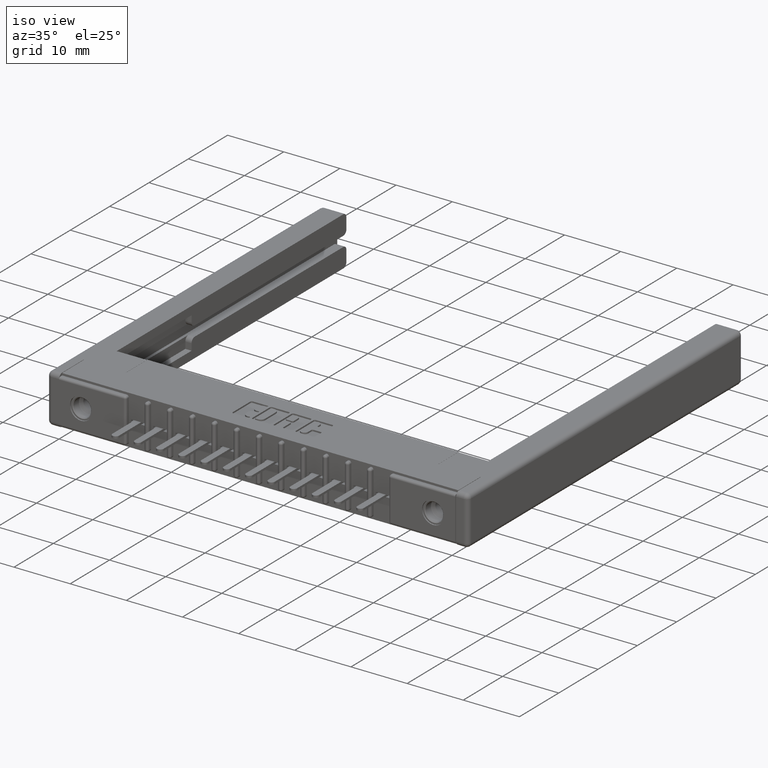
[diagram: clean part render]
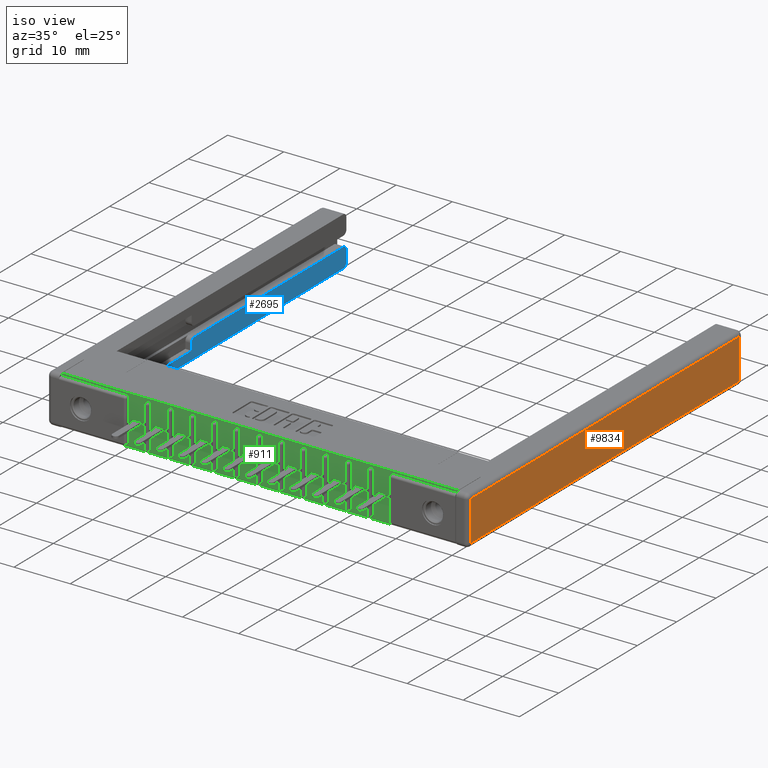
[diagram: same view with three faces highlighted in distinct colors, each labeled with its STEP entity id]
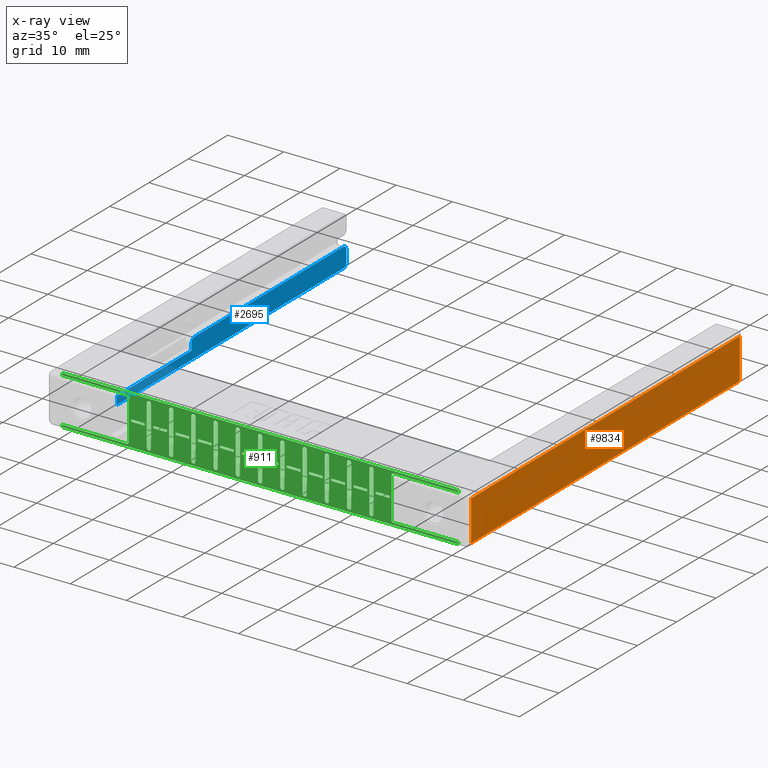
[diagram: x-ray of the same camera — body ghosted, the three highlighted faces saturated]
A machine part, iso view with three faces highlighted in distinct colors.
The next image is the same camera in x-ray (body ghosted, the three faces saturated) — at least one of them is partly hidden behind the body in this view.
Their STEP definitions:

[orange] entity #9834 — the highlighted planar face has unit normal (1, 0, 0).
#802 = ORIENTED_EDGE ( 'NONE', *, *, #11176, .T. ) ;
#2496 = LINE ( 'NONE', #10451, #13677 ) ;
#2500 = DIRECTION ( 'NONE',  ( 0.0000000000000000000, -1.000000000000000000, 0.0000000000000000000 ) ) ;
#2764 = CARTESIAN_POINT ( 'NONE',  ( 0.0000000000000000000, 0.02999999999999998848, -0.02999999999999999889 ) ) ;
#3932 = EDGE_CURVE ( 'NONE', #8083, #8305, #13164, .T. ) ;
#4376 = VECTOR ( 'NONE', #13077, 39.37007874015748143 ) ;
#6171 = ORIENTED_EDGE ( 'NONE', *, *, #16888, .T. ) ;
#7088 = DIRECTION ( 'NONE',  ( 0.0000000000000000000, 0.0000000000000000000, 1.000000000000000000 ) ) ;
#7615 = EDGE_LOOP ( 'NONE', ( #8707, #802, #8884, #6171 ) ) ;
#7622 = VERTEX_POINT ( 'NONE', #10479 ) ;
#8083 = VERTEX_POINT ( 'NONE', #2764 ) ;
#8254 = PLANE ( 'NONE',  #15347 ) ;
#8305 = VERTEX_POINT ( 'NONE', #15405 ) ;
#8707 = ORIENTED_EDGE ( 'NONE', *, *, #12171, .T. ) ;
#8884 = ORIENTED_EDGE ( 'NONE', *, *, #3932, .T. ) ;
#9112 = CARTESIAN_POINT ( 'NONE',  ( 0.0000000000000000000, 0.0000000000000000000, -0.3130000000000000004 ) ) ;
#9520 = DIRECTION ( 'NONE',  ( -1.000000000000000000, 0.0000000000000000000, 0.0000000000000000000 ) ) ;
#9802 = VECTOR ( 'NONE', #2500, 39.37007874015748143 ) ;
#9834 = ADVANCED_FACE ( 'NONE', ( #13480 ), #8254, .T. ) ;
#10451 = CARTESIAN_POINT ( 'NONE',  ( 0.0000000000000000000, 2.719999999999999751, -0.3430000000000000271 ) ) ;
#10479 = CARTESIAN_POINT ( 'NONE',  ( 0.0000000000000000000, 2.719999999999999751, -0.3130000000000000004 ) ) ;
#10540 = DIRECTION ( 'NONE',  ( -0.0000000000000000000, -0.0000000000000000000, -1.000000000000000000 ) ) ;
#11176 = EDGE_CURVE ( 'NONE', #13538, #8083, #14198, .T. ) ;
#11497 = CARTESIAN_POINT ( 'NONE',  ( 0.0000000000000000000, 0.02999999999999998848, -0.3430000000000000271 ) ) ;
#12171 = EDGE_CURVE ( 'NONE', #7622, #13538, #14866, .T. ) ;
#12422 = VECTOR ( 'NONE', #7088, 39.37007874015748143 ) ;
#13077 = DIRECTION ( 'NONE',  ( -0.0000000000000000000, 1.000000000000000000, -0.0000000000000000000 ) ) ;
#13164 = LINE ( 'NONE', #16051, #4376 ) ;
#13480 = FACE_OUTER_BOUND ( 'NONE', #7615, .T. ) ;
#13532 = CARTESIAN_POINT ( 'NONE',  ( 0.0000000000000000000, 0.02999999999999998848, -0.3130000000000000004 ) ) ;
#13538 = VERTEX_POINT ( 'NONE', #13532 ) ;
#13677 = VECTOR ( 'NONE', #10540, 39.37007874015748143 ) ;
#14198 = LINE ( 'NONE', #11497, #12422 ) ;
#14866 = LINE ( 'NONE', #9112, #9802 ) ;
#15024 = DIRECTION ( 'NONE',  ( 0.0000000000000000000, 0.0000000000000000000, 1.000000000000000000 ) ) ;
#15347 = AXIS2_PLACEMENT_3D ( 'NONE', #17787, #9520, #15024 ) ;
#15405 = CARTESIAN_POINT ( 'NONE',  ( 0.0000000000000000000, 2.719999999999999751, -0.02999999999999999889 ) ) ;
#16051 = CARTESIAN_POINT ( 'NONE',  ( 0.0000000000000000000, 2.750000000000000000, -0.02999999999999999889 ) ) ;
#16888 = EDGE_CURVE ( 'NONE', #8305, #7622, #2496, .T. ) ;
#17787 = CARTESIAN_POINT ( 'NONE',  ( 0.0000000000000000000, 0.0000000000000000000, -0.3430000000000000271 ) ) ;

[blue] entity #2695 — the highlighted planar face has unit normal (1, 0, 0).
#264 = DIRECTION ( 'NONE',  ( 0.0000000000000000000, 0.0000000000000000000, 1.000000000000000000 ) ) ;
#819 = CARTESIAN_POINT ( 'NONE',  ( 0.1730000000000000426, 2.750000000000000000, -0.2370000000000001550 ) ) ;
#842 = DIRECTION ( 'NONE',  ( 1.000000000000000000, 0.0000000000000000000, -0.0000000000000000000 ) ) ;
#914 = DIRECTION ( 'NONE',  ( 1.000000000000000000, 0.0000000000000000000, -0.0000000000000000000 ) ) ;
#1289 = CARTESIAN_POINT ( 'NONE',  ( 0.1730000000000000426, 2.719999999999999751, -0.2370000000000001550 ) ) ;
#1746 = PLANE ( 'NONE',  #15900 ) ;
#1769 = EDGE_CURVE ( 'NONE', #15862, #15595, #15600, .T. ) ;
#1849 = CARTESIAN_POINT ( 'NONE',  ( 0.1730000000000000426, 0.4499999999999999556, -0.3430000000000000271 ) ) ;
#1904 = DIRECTION ( 'NONE',  ( 0.0000000000000000000, 0.0000000000000000000, -1.000000000000000000 ) ) ;
#2172 = VERTEX_POINT ( 'NONE', #5833 ) ;
#2244 = CARTESIAN_POINT ( 'NONE',  ( 0.1730000000000000426, 2.719999999999999751, -0.3430000000000000271 ) ) ;
#2695 = ADVANCED_FACE ( 'NONE', ( #11326 ), #1746, .T. ) ;
#2817 = CARTESIAN_POINT ( 'NONE',  ( 0.1729999999999999594, 0.4499999999999999556, -0.2839999999999999192 ) ) ;
#2938 = EDGE_LOOP ( 'NONE', ( #17429, #3602, #9645, #12216, #5985, #3913, #10042, #17269, #4961 ) ) ;
#3020 = DIRECTION ( 'NONE',  ( 1.000000000000000000, 0.0000000000000000000, -0.0000000000000000000 ) ) ;
#3208 = AXIS2_PLACEMENT_3D ( 'NONE', #14267, #914, #1904 ) ;
#3480 = DIRECTION ( 'NONE',  ( 0.0000000000000000000, 0.0000000000000000000, 1.000000000000000000 ) ) ;
#3602 = ORIENTED_EDGE ( 'NONE', *, *, #13372, .T. ) ;
#3913 = ORIENTED_EDGE ( 'NONE', *, *, #5793, .T. ) ;
#3965 = DIRECTION ( 'NONE',  ( -0.0000000000000000000, -0.0000000000000000000, 1.000000000000000000 ) ) ;
#4288 = VECTOR ( 'NONE', #6641, 39.37007874015748143 ) ;
#4961 = ORIENTED_EDGE ( 'NONE', *, *, #11410, .T. ) ;
#5078 = VERTEX_POINT ( 'NONE', #12559 ) ;
#5088 = DIRECTION ( 'NONE',  ( 0.0000000000000000000, 0.0000000000000000000, -1.000000000000000000 ) ) ;
#5793 = EDGE_CURVE ( 'NONE', #15862, #15032, #15034, .T. ) ;
#5797 = CIRCLE ( 'NONE', #3208, 0.02999999999999998848 ) ;
#5833 = CARTESIAN_POINT ( 'NONE',  ( 0.1729999999999998761, 1.199999999999999956, -0.2370000000000000995 ) ) ;
#5955 = DIRECTION ( 'NONE',  ( -1.187759997245332081E-16, 1.000000000000000000, -4.454099989669995611E-17 ) ) ;
#5985 = ORIENTED_EDGE ( 'NONE', *, *, #1769, .F. ) ;
#6022 = CARTESIAN_POINT ( 'NONE',  ( 0.1730000000000000426, 0.4499999999999999556, -0.3430000000000000271 ) ) ;
#6641 = DIRECTION ( 'NONE',  ( -0.0000000000000000000, 1.000000000000000000, -0.0000000000000000000 ) ) ;
#7189 = VERTEX_POINT ( 'NONE', #13589 ) ;
#7274 = VECTOR ( 'NONE', #3480, 39.37007874015748143 ) ;
#7636 = LINE ( 'NONE', #10604, #7274 ) ;
#7823 = CIRCLE ( 'NONE', #14148, 0.03000000000000002318 ) ;
#7988 = VERTEX_POINT ( 'NONE', #10622 ) ;
#8057 = DIRECTION ( 'NONE',  ( -1.365923996832131609E-16, 1.000000000000000000, 0.0000000000000000000 ) ) ;
#8209 = LINE ( 'NONE', #13888, #10079 ) ;
#9238 = VECTOR ( 'NONE', #264, 39.37007874015748143 ) ;
#9358 = CARTESIAN_POINT ( 'NONE',  ( 0.1730000000000000426, 2.750000000000000000, -0.3430000000000000271 ) ) ;
#9505 = LINE ( 'NONE', #2817, #13335 ) ;
#9645 = ORIENTED_EDGE ( 'NONE', *, *, #11753, .F. ) ;
#9656 = EDGE_CURVE ( 'NONE', #12728, #10457, #7636, .T. ) ;
#10042 = ORIENTED_EDGE ( 'NONE', *, *, #13018, .T. ) ;
#10079 = VECTOR ( 'NONE', #3965, 39.37007874015748143 ) ;
#10302 = EDGE_CURVE ( 'NONE', #5078, #7189, #11469, .T. ) ;
#10409 = CARTESIAN_POINT ( 'NONE',  ( 0.1730000000000000426, 2.719999999999999751, -0.3130000000000000004 ) ) ;
#10457 = VERTEX_POINT ( 'NONE', #819 ) ;
#10604 = CARTESIAN_POINT ( 'NONE',  ( 0.1730000000000000426, 2.750000000000000000, -0.3430000000000000271 ) ) ;
#10622 = CARTESIAN_POINT ( 'NONE',  ( 0.1729999999999998761, 1.199999999999999956, -0.2839999999999999192 ) ) ;
#11326 = FACE_OUTER_BOUND ( 'NONE', #2938, .T. ) ;
#11410 = EDGE_CURVE ( 'NONE', #10457, #7189, #15009, .T. ) ;
#11469 = LINE ( 'NONE', #12828, #16652 ) ;
#11753 = EDGE_CURVE ( 'NONE', #7988, #2172, #8209, .T. ) ;
#12216 = ORIENTED_EDGE ( 'NONE', *, *, #14442, .F. ) ;
#12395 = DIRECTION ( 'NONE',  ( 0.0000000000000000000, 0.0000000000000000000, -1.000000000000000000 ) ) ;
#12559 = CARTESIAN_POINT ( 'NONE',  ( 0.1729999999999998761, 1.229999999999999760, -0.2070000000000001006 ) ) ;
#12679 = CARTESIAN_POINT ( 'NONE',  ( 0.1730000000000000426, 2.750000000000000000, -0.3430000000000000271 ) ) ;
#12728 = VERTEX_POINT ( 'NONE', #15028 ) ;
#12828 = CARTESIAN_POINT ( 'NONE',  ( 0.1729999999999999594, 0.4500000000000001221, -0.2070000000000000728 ) ) ;
#13018 = EDGE_CURVE ( 'NONE', #15032, #12728, #7823, .T. ) ;
#13335 = VECTOR ( 'NONE', #8057, 39.37007874015748143 ) ;
#13372 = EDGE_CURVE ( 'NONE', #5078, #2172, #5797, .T. ) ;
#13589 = CARTESIAN_POINT ( 'NONE',  ( 0.1729999999999997096, 2.719999999999999307, -0.2070000000000001839 ) ) ;
#13888 = CARTESIAN_POINT ( 'NONE',  ( 0.1729999999999998761, 1.199999999999999956, -0.05899999999999993444 ) ) ;
#14148 = AXIS2_PLACEMENT_3D ( 'NONE', #10409, #842, #5088 ) ;
#14267 = CARTESIAN_POINT ( 'NONE',  ( 0.1730000000000000426, 1.229999999999999982, -0.2370000000000000995 ) ) ;
#14442 = EDGE_CURVE ( 'NONE', #15595, #7988, #9505, .T. ) ;
#15009 = CIRCLE ( 'NONE', #15314, 0.02999999999999998848 ) ;
#15028 = CARTESIAN_POINT ( 'NONE',  ( 0.1730000000000000426, 2.750000000000000000, -0.3130000000000000004 ) ) ;
#15032 = VERTEX_POINT ( 'NONE', #2244 ) ;
#15034 = LINE ( 'NONE', #9358, #4288 ) ;
#15314 = AXIS2_PLACEMENT_3D ( 'NONE', #1289, #16439, #12395 ) ;
#15595 = VERTEX_POINT ( 'NONE', #16375 ) ;
#15600 = LINE ( 'NONE', #6022, #9238 ) ;
#15862 = VERTEX_POINT ( 'NONE', #1849 ) ;
#15900 = AXIS2_PLACEMENT_3D ( 'NONE', #12679, #3020, #16726 ) ;
#16375 = CARTESIAN_POINT ( 'NONE',  ( 0.1729999999999999594, 0.4499999999999999556, -0.2839999999999999192 ) ) ;
#16439 = DIRECTION ( 'NONE',  ( 1.000000000000000000, 0.0000000000000000000, -0.0000000000000000000 ) ) ;
#16652 = VECTOR ( 'NONE', #5955, 39.37007874015748143 ) ;
#16726 = DIRECTION ( 'NONE',  ( -0.0000000000000000000, 0.0000000000000000000, -1.000000000000000000 ) ) ;
#17269 = ORIENTED_EDGE ( 'NONE', *, *, #9656, .T. ) ;
#17429 = ORIENTED_EDGE ( 'NONE', *, *, #10302, .F. ) ;

[green] entity #911 — the highlighted planar face has unit normal (0, 1, 0).
#45 = LINE ( 'NONE', #6716, #6064 ) ;
#61 = LINE ( 'NONE', #12689, #8024 ) ;
#75 = CARTESIAN_POINT ( 'NONE',  ( 1.062000000000000055, 0.03100000000000002406, -0.3130000000000000560 ) ) ;
#83 = ORIENTED_EDGE ( 'NONE', *, *, #2349, .F. ) ;
#111 = VECTOR ( 'NONE', #12455, 39.37007874015748143 ) ;
#114 = ORIENTED_EDGE ( 'NONE', *, *, #16908, .T. ) ;
#131 = CARTESIAN_POINT ( 'NONE',  ( 1.419500000000002204, 0.03100000000000002406, -0.08150000000000028055 ) ) ;
#156 = FACE_BOUND ( 'NONE', #11751, .T. ) ;
#160 = LINE ( 'NONE', #6921, #6980 ) ;
#174 = CARTESIAN_POINT ( 'NONE',  ( 1.701000000000000068, 0.03100000000000002406, -0.3130000000000000560 ) ) ;
#225 = DIRECTION ( 'NONE',  ( 0.0000000000000000000, 0.0000000000000000000, 1.000000000000000000 ) ) ;
#229 = ORIENTED_EDGE ( 'NONE', *, *, #4863, .T. ) ;
#238 = ORIENTED_EDGE ( 'NONE', *, *, #2946, .F. ) ;
#240 = FACE_BOUND ( 'NONE', #10581, .T. ) ;
#255 = CIRCLE ( 'NONE', #4562, 0.01499999999999999944 ) ;
#266 = EDGE_CURVE ( 'NONE', #969, #15383, #2297, .T. ) ;
#286 = CIRCLE ( 'NONE', #12107, 0.01500000000000001159 ) ;
#311 = AXIS2_PLACEMENT_3D ( 'NONE', #2347, #2080, #8950 ) ;
#315 = DIRECTION ( 'NONE',  ( 0.0000000000000000000, -0.0000000000000000000, 1.000000000000000000 ) ) ;
#330 = CARTESIAN_POINT ( 'NONE',  ( 1.107500000000002371, 0.03099999999999999978, -0.1790000000000002978 ) ) ;
#338 = FACE_BOUND ( 'NONE', #15637, .T. ) ;
#361 = LINE ( 'NONE', #14147, #17523 ) ;
#384 = ORIENTED_EDGE ( 'NONE', *, *, #15498, .F. ) ;
#389 = DIRECTION ( 'NONE',  ( 2.181987215386787516E-16, 0.0000000000000000000, -1.000000000000000000 ) ) ;
#429 = DIRECTION ( 'NONE',  ( 0.0000000000000000000, 1.000000000000000000, 0.0000000000000000000 ) ) ;
#446 = DIRECTION ( 'NONE',  ( 0.0000000000000000000, 0.0000000000000000000, 1.000000000000000000 ) ) ;
#454 = CARTESIAN_POINT ( 'NONE',  ( 1.731500000000002260, 0.03100000000000002406, -0.08150000000000028055 ) ) ;
#472 = LINE ( 'NONE', #1640, #15313 ) ;
#491 = CARTESIAN_POINT ( 'NONE',  ( 2.027999999999999581, 0.03100000000000002406, -0.02999999999999998848 ) ) ;
#537 = DIRECTION ( 'NONE',  ( 0.0000000000000000000, 0.0000000000000000000, 1.000000000000000000 ) ) ;
#588 = CARTESIAN_POINT ( 'NONE',  ( 2.294500000000002427, 0.03099999999999999978, -0.1790000000000002978 ) ) ;
#593 = LINE ( 'NONE', #10574, #16693 ) ;
#609 = EDGE_CURVE ( 'NONE', #7546, #7645, #1683, .T. ) ;
#612 = VECTOR ( 'NONE', #11595, 39.37007874015748143 ) ;
#633 = LINE ( 'NONE', #1969, #4946 ) ;
#643 = LINE ( 'NONE', #2081, #4921 ) ;
#662 = DIRECTION ( 'NONE',  ( -1.000000000000000000, 0.0000000000000000000, -0.0000000000000000000 ) ) ;
#675 = VERTEX_POINT ( 'NONE', #2056 ) ;
#688 = LINE ( 'NONE', #6454, #11311 ) ;
#702 = EDGE_CURVE ( 'NONE', #13101, #12200, #971, .T. ) ;
#728 = VERTEX_POINT ( 'NONE', #14414 ) ;
#741 = CIRCLE ( 'NONE', #2756, 0.01500000000000001159 ) ;
#745 = EDGE_LOOP ( 'NONE', ( #83, #15890, #3370, #3855 ) ) ;
#751 = VERTEX_POINT ( 'NONE', #13768 ) ;
#783 = CARTESIAN_POINT ( 'NONE',  ( 2.778000000000000469, 0.03099999999999999978, -0.3430000000000000271 ) ) ;
#834 = LINE ( 'NONE', #17505, #9916 ) ;
#847 = EDGE_LOOP ( 'NONE', ( #3375, #1996, #8168, #10710 ) ) ;
#899 = VECTOR ( 'NONE', #315, 39.37007874015748143 ) ;
#901 = CARTESIAN_POINT ( 'NONE',  ( 0.9060000000000001386, 0.03100000000000002406, -0.3130000000000000560 ) ) ;
#911 = ADVANCED_FACE ( 'NONE', ( #9446, #17725, #5384, #9979, #3040, #9801, #3215, #8735, #15320, #1510, #338, #7187, #13867, #5829, #15485, #7279, #7361, #16832, #15572, #240, #156, #14212, #8465, #11253 ), #2952, .F. ) ;
#919 = VERTEX_POINT ( 'NONE', #12866 ) ;
#924 = VERTEX_POINT ( 'NONE', #8640 ) ;
#947 = VECTOR ( 'NONE', #9578, 39.37007874015748143 ) ;
#954 = ORIENTED_EDGE ( 'NONE', *, *, #702, .F. ) ;
#956 = DIRECTION ( 'NONE',  ( 0.0000000000000000000, -0.0000000000000000000, 1.000000000000000000 ) ) ;
#969 = VERTEX_POINT ( 'NONE', #1935 ) ;
#971 = LINE ( 'NONE', #3502, #8018 ) ;
#970 = DIRECTION ( 'NONE',  ( 0.0000000000000000000, 1.000000000000000000, 0.0000000000000000000 ) ) ;
#974 = DIRECTION ( 'NONE',  ( 0.0000000000000000000, 1.000000000000000000, 0.0000000000000000000 ) ) ;
#985 = CARTESIAN_POINT ( 'NONE',  ( 0.9360000000000000542, 0.03100000000000002406, -0.3130000000000000560 ) ) ;
#990 = CIRCLE ( 'NONE', #15417, 0.01500000000000001159 ) ;
#1005 = CIRCLE ( 'NONE', #13394, 0.01500000000000001159 ) ;
#1020 = CARTESIAN_POINT ( 'NONE',  ( 2.027999999999999581, 0.03100000000000002406, -0.3130000000000000560 ) ) ;
#1054 = EDGE_CURVE ( 'NONE', #17459, #9508, #593, .T. ) ;
#1060 = CARTESIAN_POINT ( 'NONE',  ( 0.7650000000000001243, 0.03099999999999999978, -0.02999999999999997807 ) ) ;
#1064 = LINE ( 'NONE', #2689, #10925 ) ;
#1066 = VERTEX_POINT ( 'NONE', #14635 ) ;
#1079 = DIRECTION ( 'NONE',  ( 0.0000000000000000000, 0.0000000000000000000, 1.000000000000000000 ) ) ;
#1111 = CARTESIAN_POINT ( 'NONE',  ( 1.232999999999999874, 0.03100000000000002406, -0.3130000000000000560 ) ) ;
#1125 = ORIENTED_EDGE ( 'NONE', *, *, #6526, .F. ) ;
#1129 = CARTESIAN_POINT ( 'NONE',  ( 0.6395000000000022888, 0.03099999999999999978, -0.1790000000000002978 ) ) ;
#1142 = DIRECTION ( 'NONE',  ( 0.0000000000000000000, 0.0000000000000000000, 1.000000000000000000 ) ) ;
#1182 = ORIENTED_EDGE ( 'NONE', *, *, #13273, .F. ) ;
#1195 = DIRECTION ( 'NONE',  ( 0.0000000000000000000, 0.0000000000000000000, 1.000000000000000000 ) ) ;
#1203 = LINE ( 'NONE', #6878, #2337 ) ;
#1214 = EDGE_CURVE ( 'NONE', #12162, #17103, #16512, .T. ) ;
#1215 = CARTESIAN_POINT ( 'NONE',  ( 1.545000000000000151, 0.03100000000000002406, -0.3130000000000000560 ) ) ;
#1237 = CARTESIAN_POINT ( 'NONE',  ( 1.263500000000002288, 0.03099999999999999978, -0.1790000000000002978 ) ) ;
#1262 = DIRECTION ( 'NONE',  ( 0.0000000000000000000, 1.000000000000000000, 0.0000000000000000000 ) ) ;
#1269 = ORIENTED_EDGE ( 'NONE', *, *, #3792, .T. ) ;
#1272 = AXIS2_PLACEMENT_3D ( 'NONE', #15909, #9146, #9063 ) ;
#1282 = CARTESIAN_POINT ( 'NONE',  ( 1.530000000000000027, 0.03100000000000002406, -0.3280000000000005689 ) ) ;
#1294 = EDGE_CURVE ( 'NONE', #9363, #7721, #643, .T. ) ;
#1295 = VERTEX_POINT ( 'NONE', #13088 ) ;
#1313 = VERTEX_POINT ( 'NONE', #3258 ) ;
#1320 = LINE ( 'NONE', #12248, #10618 ) ;
#1361 = VERTEX_POINT ( 'NONE', #4701 ) ;
#1381 = AXIS2_PLACEMENT_3D ( 'NONE', #8148, #10938, #5527 ) ;
#1420 = CARTESIAN_POINT ( 'NONE',  ( 2.324999999999999734, 0.03099999999999999978, -0.02999999999999997807 ) ) ;
#1426 = VECTOR ( 'NONE', #9752, 39.37007874015748143 ) ;
#1453 = VERTEX_POINT ( 'NONE', #17487 ) ;
#1499 = VERTEX_POINT ( 'NONE', #13262 ) ;
#1505 = EDGE_CURVE ( 'NONE', #15383, #6374, #9158, .T. ) ;
#1510 = FACE_BOUND ( 'NONE', #15563, .T. ) ;
#1511 = DIRECTION ( 'NONE',  ( 1.000000000000000000, -0.0000000000000000000, 0.0000000000000000000 ) ) ;
#1519 = VERTEX_POINT ( 'NONE', #4878 ) ;
#1526 = EDGE_CURVE ( 'NONE', #16807, #751, #15758, .T. ) ;
#1535 = ORIENTED_EDGE ( 'NONE', *, *, #1653, .T. ) ;
#1567 = LINE ( 'NONE', #131, #6183 ) ;
#1576 = LINE ( 'NONE', #7085, #899 ) ;
#1612 = EDGE_CURVE ( 'NONE', #15220, #919, #8294, .T. ) ;
#1627 = ORIENTED_EDGE ( 'NONE', *, *, #16382, .T. ) ;
#1637 = DIRECTION ( 'NONE',  ( -1.000000000000000000, -0.0000000000000000000, -0.0000000000000000000 ) ) ;
#1640 = CARTESIAN_POINT ( 'NONE',  ( 2.138500000000001844, 0.03100000000000002406, -0.08150000000000028055 ) ) ;
#1653 = EDGE_CURVE ( 'NONE', #751, #1453, #2701, .T. ) ;
#1683 = CIRCLE ( 'NONE', #5710, 0.01499999999999999944 ) ;
#1691 = EDGE_CURVE ( 'NONE', #3823, #13745, #361, .T. ) ;
#1700 = DIRECTION ( 'NONE',  ( 0.0000000000000000000, -0.0000000000000000000, 1.000000000000000000 ) ) ;
#1719 = AXIS2_PLACEMENT_3D ( 'NONE', #8759, #14241, #14420 ) ;
#1750 = VECTOR ( 'NONE', #956, 39.37007874015748143 ) ;
#1755 = ORIENTED_EDGE ( 'NONE', *, *, #1294, .T. ) ;
#1760 = VECTOR ( 'NONE', #5620, 39.37007874015748143 ) ;
#1761 = AXIS2_PLACEMENT_3D ( 'NONE', #16135, #17384, #2328 ) ;
#1774 = CARTESIAN_POINT ( 'NONE',  ( 1.232999999999999874, 0.03100000000000002406, -0.02999999999999998848 ) ) ;
#1809 = ORIENTED_EDGE ( 'NONE', *, *, #5896, .T. ) ;
#1825 = VERTEX_POINT ( 'NONE', #1877 ) ;
#1854 = VERTEX_POINT ( 'NONE', #8573 ) ;
#1860 = EDGE_CURVE ( 'NONE', #1453, #1825, #7223, .T. ) ;
#1864 = AXIS2_PLACEMENT_3D ( 'NONE', #8486, #13975, #4156 ) ;
#1877 = CARTESIAN_POINT ( 'NONE',  ( 1.076999999999999957, 0.03099999999999999978, -0.3280000000000000138 ) ) ;
#1913 = LINE ( 'NONE', #3546, #8704 ) ;
#1918 = EDGE_CURVE ( 'NONE', #1519, #2527, #17469, .T. ) ;
#1935 = CARTESIAN_POINT ( 'NONE',  ( 0.9060000000000001386, 0.03100000000000002406, -0.02999999999999998848 ) ) ;
#1936 = CARTESIAN_POINT ( 'NONE',  ( 1.046500000000002428, 0.03099999999999999978, -0.1790000000000002978 ) ) ;
#1938 = CARTESIAN_POINT ( 'NONE',  ( 2.184000000000000163, 0.03100000000000002406, -0.02999999999999998848 ) ) ;
#1948 = DIRECTION ( 'NONE',  ( 0.0000000000000000000, 1.000000000000000000, 0.0000000000000000000 ) ) ;
#1963 = DIRECTION ( 'NONE',  ( 0.0000000000000000000, 0.0000000000000000000, 1.000000000000000000 ) ) ;
#1969 = CARTESIAN_POINT ( 'NONE',  ( 0.9515000000000024549, 0.03099999999999999978, -0.1640000000000002844 ) ) ;
#1972 = VERTEX_POINT ( 'NONE', #17382 ) ;
#1992 = CIRCLE ( 'NONE', #14676, 0.01500000000000001159 ) ;
#1993 = CIRCLE ( 'NONE', #13765, 0.01500000000000001159 ) ;
#1996 = ORIENTED_EDGE ( 'NONE', *, *, #7311, .F. ) ;
#2001 = VECTOR ( 'NONE', #10319, 39.37007874015748143 ) ;
#2015 = AXIS2_PLACEMENT_3D ( 'NONE', #1774, #4413, #5745 ) ;
#2029 = VECTOR ( 'NONE', #4393, 39.37007874015748143 ) ;
#2033 = LINE ( 'NONE', #2128, #14150 ) ;
#2051 = EDGE_CURVE ( 'NONE', #15073, #675, #13540, .T. ) ;
#2056 = CARTESIAN_POINT ( 'NONE',  ( 1.871999999999999886, 0.03100000000000002406, -0.02999999999999998848 ) ) ;
#2080 = DIRECTION ( 'NONE',  ( 0.0000000000000000000, 1.000000000000000000, 0.0000000000000000000 ) ) ;
#2081 = CARTESIAN_POINT ( 'NONE',  ( 1.062000000000000055, 0.03100000000000002406, -0.3280000000000005689 ) ) ;
#2102 = CARTESIAN_POINT ( 'NONE',  ( 0.4680000000000000826, 0.03100000000000002406, -0.3280000000000005689 ) ) ;
#2128 = CARTESIAN_POINT ( 'NONE',  ( 0.0000000000000000000, 0.03099999999999999978, 0.0000000000000000000 ) ) ;
#2127 = DIRECTION ( 'NONE',  ( 0.0000000000000000000, 1.000000000000000000, 0.0000000000000000000 ) ) ;
#2152 = DIRECTION ( 'NONE',  ( 0.0000000000000000000, 0.0000000000000000000, 1.000000000000000000 ) ) ;
#2158 = DIRECTION ( 'NONE',  ( -1.000000000000000000, 0.0000000000000000000, -0.0000000000000000000 ) ) ;
#2177 = ORIENTED_EDGE ( 'NONE', *, *, #13721, .T. ) ;
#2178 = CARTESIAN_POINT ( 'NONE',  ( 1.202500000000002345, 0.03100000000000002406, -0.08150000000000028055 ) ) ;
#2184 = EDGE_CURVE ( 'NONE', #15466, #2712, #13955, .T. ) ;
#2210 = VERTEX_POINT ( 'NONE', #11347 ) ;
#2221 = CARTESIAN_POINT ( 'NONE',  ( 1.514500000000002178, 0.03100000000000002406, -0.1640000000000002844 ) ) ;
#2222 = VECTOR ( 'NONE', #1700, 39.37007874015748143 ) ;
#2256 = ORIENTED_EDGE ( 'NONE', *, *, #9559, .F. ) ;
#2270 = ORIENTED_EDGE ( 'NONE', *, *, #3111, .T. ) ;
#2297 = CIRCLE ( 'NONE', #311, 0.01499999999999999944 ) ;
#2305 = VECTOR ( 'NONE', #1637, 39.37007874015748143 ) ;
#2319 = EDGE_CURVE ( 'NONE', #6530, #7602, #3574, .T. ) ;
#2327 = ORIENTED_EDGE ( 'NONE', *, *, #16670, .T. ) ;
#2328 = DIRECTION ( 'NONE',  ( 0.0000000000000000000, 0.0000000000000000000, 1.000000000000000000 ) ) ;
#2337 = VECTOR ( 'NONE', #16266, 39.37007874015748143 ) ;
#2347 = CARTESIAN_POINT ( 'NONE',  ( 0.9210000000000000409, 0.03099999999999999978, -0.02999999999999997807 ) ) ;
#2349 = EDGE_CURVE ( 'NONE', #728, #15469, #3662, .T. ) ;
#2362 = EDGE_CURVE ( 'NONE', #13810, #6134, #2033, .T. ) ;
#2363 = VERTEX_POINT ( 'NONE', #7637 ) ;
#2396 = DIRECTION ( 'NONE',  ( -1.000000000000000000, -0.0000000000000000000, -0.0000000000000000000 ) ) ;
#2426 = DIRECTION ( 'NONE',  ( 0.0000000000000000000, 0.0000000000000000000, 1.000000000000000000 ) ) ;
#2460 = DIRECTION ( 'NONE',  ( 0.0000000000000000000, 0.0000000000000000000, 1.000000000000000000 ) ) ;
#2465 = DIRECTION ( 'NONE',  ( 0.0000000000000000000, 0.0000000000000000000, 1.000000000000000000 ) ) ;
#2474 = DIRECTION ( 'NONE',  ( 0.0000000000000000000, 1.000000000000000000, 0.0000000000000000000 ) ) ;
#2489 = DIRECTION ( 'NONE',  ( 1.000000000000000000, -0.0000000000000000000, 0.0000000000000000000 ) ) ;
#2506 = LINE ( 'NONE', #10997, #6854 ) ;
#2514 = CARTESIAN_POINT ( 'NONE',  ( 0.4530000000000000693, 0.03099999999999999978, -0.01499999999999997689 ) ) ;
#2517 = EDGE_LOOP ( 'NONE', ( #14935, #17723, #13738, #6047, #2983, #17753 ) ) ;
#2519 = ORIENTED_EDGE ( 'NONE', *, *, #10397, .T. ) ;
#2522 = CARTESIAN_POINT ( 'NONE',  ( 1.247999999999999998, 0.03100000000000002406, -0.3130000000000000560 ) ) ;
#2527 = VERTEX_POINT ( 'NONE', #14846 ) ;
#2545 = DIRECTION ( 'NONE',  ( 0.0000000000000000000, 1.000000000000000000, 0.0000000000000000000 ) ) ;
#2572 = CIRCLE ( 'NONE', #4889, 0.01499999999999999944 ) ;
#2586 = CARTESIAN_POINT ( 'NONE',  ( 0.6089999999999999858, 0.03099999999999999978, -0.01499999999999997689 ) ) ;
#2610 = VERTEX_POINT ( 'NONE', #5812 ) ;
#2614 = LINE ( 'NONE', #454, #14273 ) ;
#2618 = CARTESIAN_POINT ( 'NONE',  ( 1.982500000000002149, 0.03100000000000002406, -0.08150000000000028055 ) ) ;
#2654 = VECTOR ( 'NONE', #3930, 39.37007874015748143 ) ;
#2678 = CIRCLE ( 'NONE', #4992, 0.01499999999999999944 ) ;
#2685 = ORIENTED_EDGE ( 'NONE', *, *, #2184, .F. ) ;
#2689 = CARTESIAN_POINT ( 'NONE',  ( 0.4835000000000023723, 0.03099999999999999978, -0.1790000000000002978 ) ) ;
#2693 = VECTOR ( 'NONE', #2489, 39.37007874015748143 ) ;
#2696 = EDGE_LOOP ( 'NONE', ( #13100, #8590, #7406, #17371, #14650, #10372 ) ) ;
#2701 = LINE ( 'NONE', #8212, #3983 ) ;
#2712 = VERTEX_POINT ( 'NONE', #6996 ) ;
#2715 = EDGE_CURVE ( 'NONE', #2950, #2979, #1576, .T. ) ;
#2719 = DIRECTION ( 'NONE',  ( 0.0000000000000000000, 0.0000000000000000000, 1.000000000000000000 ) ) ;
#2756 = AXIS2_PLACEMENT_3D ( 'NONE', #7113, #16841, #3133 ) ;
#2768 = VERTEX_POINT ( 'NONE', #17165 ) ;
#2785 = LINE ( 'NONE', #3059, #17272 ) ;
#2849 = CARTESIAN_POINT ( 'NONE',  ( 0.6090000000000000968, 0.03100000000000002406, -0.3130000000000000560 ) ) ;
#2855 = EDGE_CURVE ( 'NONE', #13756, #10886, #9243, .T. ) ;
#2859 = EDGE_CURVE ( 'NONE', #15141, #10516, #17766, .T. ) ;
#2888 = VECTOR ( 'NONE', #11299, 39.37007874015748143 ) ;
#2891 = EDGE_LOOP ( 'NONE', ( #12620, #4884, #9056, #4487 ) ) ;
#2913 = AXIS2_PLACEMENT_3D ( 'NONE', #12132, #2545, #14830 ) ;
#2917 = VERTEX_POINT ( 'NONE', #8236 ) ;
#2932 = CIRCLE ( 'NONE', #6679, 0.01500000000000001159 ) ;
#2946 = EDGE_CURVE ( 'NONE', #1066, #14770, #6790, .T. ) ;
#2950 = VERTEX_POINT ( 'NONE', #16436 ) ;
#2952 = PLANE ( 'NONE',  #13486 ) ;
#2951 = CARTESIAN_POINT ( 'NONE',  ( 1.107500000000002371, 0.03099999999999999978, -0.1790000000000002978 ) ) ;
#2979 = VERTEX_POINT ( 'NONE', #3825 ) ;
#2983 = ORIENTED_EDGE ( 'NONE', *, *, #16049, .T. ) ;
#3010 = AXIS2_PLACEMENT_3D ( 'NONE', #8407, #4251, #14247 ) ;
#3023 = CARTESIAN_POINT ( 'NONE',  ( 0.0000000000000000000, 0.03099999999999999978, -0.3430000000000000271 ) ) ;
#3040 = FACE_BOUND ( 'NONE', #7050, .T. ) ;
#3059 = CARTESIAN_POINT ( 'NONE',  ( 2.778000000000000469, 0.03099999999999999978, -0.01499999999999997689 ) ) ;
#3065 = CARTESIAN_POINT ( 'NONE',  ( 0.6395000000000022888, 0.03100000000000002406, -0.08150000000000028055 ) ) ;
#3072 = EDGE_CURVE ( 'NONE', #12181, #6208, #14057, .T. ) ;
#3086 = VERTEX_POINT ( 'NONE', #4510 ) ;
#3096 = LINE ( 'NONE', #4378, #10340 ) ;
#3111 = EDGE_CURVE ( 'NONE', #919, #12291, #5813, .T. ) ;
#3133 = DIRECTION ( 'NONE',  ( 0.0000000000000000000, 0.0000000000000000000, 1.000000000000000000 ) ) ;
#3136 = CARTESIAN_POINT ( 'NONE',  ( 2.199500000000002231, 0.03100000000000002406, -0.1640000000000002844 ) ) ;
#3139 = DIRECTION ( 'NONE',  ( 0.0000000000000000000, 1.000000000000000000, 0.0000000000000000000 ) ) ;
#3154 = VERTEX_POINT ( 'NONE', #13344 ) ;
#3178 = CARTESIAN_POINT ( 'NONE',  ( 0.5785000000000023457, 0.03099999999999999978, -0.1790000000000002978 ) ) ;
#3215 = FACE_BOUND ( 'NONE', #11114, .T. ) ;
#3254 = EDGE_CURVE ( 'NONE', #4678, #8237, #16772, .T. ) ;
#3258 = CARTESIAN_POINT ( 'NONE',  ( 1.841999999999999860, 0.03100000000000002406, -0.02999999999999998848 ) ) ;
#3293 = CARTESIAN_POINT ( 'NONE',  ( 2.153999999999999915, 0.03100000000000002406, -0.02999999999999998848 ) ) ;
#3301 = CARTESIAN_POINT ( 'NONE',  ( 2.169000000000000039, 0.03100000000000002406, -0.02999999999999998848 ) ) ;
#3333 = LINE ( 'NONE', #10461, #7834 ) ;
#3342 = CIRCLE ( 'NONE', #3010, 0.01499999999999999944 ) ;
#3370 = ORIENTED_EDGE ( 'NONE', *, *, #3563, .T. ) ;
#3371 = LINE ( 'NONE', #3023, #2029 ) ;
#3375 = ORIENTED_EDGE ( 'NONE', *, *, #7688, .F. ) ;
#3382 = EDGE_CURVE ( 'NONE', #10497, #2610, #13403, .T. ) ;
#3392 = VECTOR ( 'NONE', #6523, 39.37007874015748143 ) ;
#3402 = EDGE_CURVE ( 'NONE', #3154, #17377, #17706, .T. ) ;
#3407 = ORIENTED_EDGE ( 'NONE', *, *, #9325, .T. ) ;
#3409 = CARTESIAN_POINT ( 'NONE',  ( 0.6089999999999999858, 0.03099999999999999978, -0.02999999999999997807 ) ) ;
#3420 = CARTESIAN_POINT ( 'NONE',  ( 0.7650000000000001243, 0.03100000000000002406, -0.02999999999999998848 ) ) ;
#3426 = AXIS2_PLACEMENT_3D ( 'NONE', #5398, #16312, #2426 ) ;
#3456 = VERTEX_POINT ( 'NONE', #6005 ) ;
#3502 = CARTESIAN_POINT ( 'NONE',  ( 1.670500000000002316, 0.03100000000000002406, -0.08150000000000028055 ) ) ;
#3515 = ORIENTED_EDGE ( 'NONE', *, *, #16079, .T. ) ;
#3527 = CARTESIAN_POINT ( 'NONE',  ( 1.076999999999999957, 0.03100000000000002406, -0.02999999999999998848 ) ) ;
#3544 = DIRECTION ( 'NONE',  ( 0.0000000000000000000, 0.0000000000000000000, 1.000000000000000000 ) ) ;
#3546 = CARTESIAN_POINT ( 'NONE',  ( 1.731500000000002260, 0.03099999999999999978, -0.1640000000000002844 ) ) ;
#3558 = VERTEX_POINT ( 'NONE', #5709 ) ;
#3559 = CIRCLE ( 'NONE', #8765, 0.01499999999999999944 ) ;
#3563 = EDGE_CURVE ( 'NONE', #15604, #13607, #1567, .T. ) ;
#3574 = LINE ( 'NONE', #14667, #9820 ) ;
#3593 = CARTESIAN_POINT ( 'NONE',  ( 1.731500000000002260, 0.03100000000000002406, -0.1640000000000002844 ) ) ;
#3646 = CARTESIAN_POINT ( 'NONE',  ( 1.232999999999999874, 0.03099999999999999978, -0.3130000000000000560 ) ) ;
#3652 = LINE ( 'NONE', #14653, #4864 ) ;
#3662 = LINE ( 'NONE', #7899, #1750 ) ;
#3669 = DIRECTION ( 'NONE',  ( 0.0000000000000000000, 0.0000000000000000000, 1.000000000000000000 ) ) ;
#3678 = DIRECTION ( 'NONE',  ( -1.000000000000000000, 0.0000000000000000000, -0.0000000000000000000 ) ) ;
#3691 = LINE ( 'NONE', #17311, #17525 ) ;
#3695 = ORIENTED_EDGE ( 'NONE', *, *, #16813, .T. ) ;
#3731 = CARTESIAN_POINT ( 'NONE',  ( 2.310000000000000053, 0.03100000000000002406, -0.3130000000000000560 ) ) ;
#3740 = EDGE_CURVE ( 'NONE', #7433, #1295, #7362, .T. ) ;
#3791 = CARTESIAN_POINT ( 'NONE',  ( 1.826500000000002233, 0.03099999999999999978, -0.1790000000000002978 ) ) ;
#3792 = EDGE_CURVE ( 'NONE', #13209, #16804, #2614, .T. ) ;
#3806 = EDGE_CURVE ( 'NONE', #12291, #1854, #3342, .T. ) ;
#3823 = VERTEX_POINT ( 'NONE', #13981 ) ;
#3825 = CARTESIAN_POINT ( 'NONE',  ( 0.7345000000000022622, 0.03100000000000002406, -0.1640000000000002844 ) ) ;
#3831 = CARTESIAN_POINT ( 'NONE',  ( 2.153999999999999915, 0.03100000000000002406, -0.3130000000000000560 ) ) ;
#3833 = ORIENTED_EDGE ( 'NONE', *, *, #609, .T. ) ;
#3835 = CARTESIAN_POINT ( 'NONE',  ( 0.6395000000000022888, 0.03100000000000002406, -0.1640000000000002844 ) ) ;
#3838 = CARTESIAN_POINT ( 'NONE',  ( 1.388999999999999790, 0.03099999999999999978, -0.01499999999999997689 ) ) ;
#3855 = ORIENTED_EDGE ( 'NONE', *, *, #6209, .F. ) ;
#3856 = DIRECTION ( 'NONE',  ( -1.000000000000000000, -0.0000000000000000000, -0.0000000000000000000 ) ) ;
#3864 = CARTESIAN_POINT ( 'NONE',  ( 0.7500000000000001110, 0.03100000000000002406, -0.02999999999999998848 ) ) ;
#3873 = DIRECTION ( 'NONE',  ( 0.0000000000000000000, -0.0000000000000000000, 1.000000000000000000 ) ) ;
#3897 = AXIS2_PLACEMENT_3D ( 'NONE', #8001, #11997, #10624 ) ;
#3924 = EDGE_CURVE ( 'NONE', #3558, #7479, #633, .T. ) ;
#3930 = DIRECTION ( 'NONE',  ( 2.181987215386787516E-16, 0.0000000000000000000, -1.000000000000000000 ) ) ;
#3939 = CARTESIAN_POINT ( 'NONE',  ( 1.107500000000002371, 0.03100000000000002406, -0.08150000000000028055 ) ) ;
#3958 = VERTEX_POINT ( 'NONE', #14695 ) ;
#3968 = CARTESIAN_POINT ( 'NONE',  ( 1.856999999999999984, 0.03099999999999999978, -0.02999999999999997807 ) ) ;
#3983 = VECTOR ( 'NONE', #12463, 39.37007874015748143 ) ;
#4023 = VERTEX_POINT ( 'NONE', #15961 ) ;
#4024 = VERTEX_POINT ( 'NONE', #14524 ) ;
#4049 = EDGE_CURVE ( 'NONE', #15141, #14557, #1064, .T. ) ;
#4112 = EDGE_CURVE ( 'NONE', #1854, #3154, #13695, .T. ) ;
#4144 = EDGE_CURVE ( 'NONE', #11887, #13756, #10730, .T. ) ;
#4149 = CARTESIAN_POINT ( 'NONE',  ( 2.012999999999999901, 0.03100000000000002406, -0.02999999999999998848 ) ) ;
#4156 = DIRECTION ( 'NONE',  ( 0.0000000000000000000, 0.0000000000000000000, 1.000000000000000000 ) ) ;
#4189 = LINE ( 'NONE', #9599, #11852 ) ;
#4200 = EDGE_CURVE ( 'NONE', #924, #7080, #741, .T. ) ;
#4227 = VERTEX_POINT ( 'NONE', #12621 ) ;
#4251 = DIRECTION ( 'NONE',  ( 0.0000000000000000000, 1.000000000000000000, 0.0000000000000000000 ) ) ;
#4273 = LINE ( 'NONE', #12752, #15063 ) ;
#4297 = VERTEX_POINT ( 'NONE', #6372 ) ;
#4307 = ORIENTED_EDGE ( 'NONE', *, *, #6231, .T. ) ;
#4321 = VECTOR ( 'NONE', #7726, 39.37007874015748143 ) ;
#4328 = VECTOR ( 'NONE', #4364, 39.37007874015748143 ) ;
#4340 = EDGE_LOOP ( 'NONE', ( #2270, #17446, #7859, #17347, #15841, #7495 ) ) ;
#4363 = ORIENTED_EDGE ( 'NONE', *, *, #12880, .F. ) ;
#4364 = DIRECTION ( 'NONE',  ( 0.0000000000000000000, 0.0000000000000000000, 1.000000000000000000 ) ) ;
#4378 = CARTESIAN_POINT ( 'NONE',  ( 2.043500000000002093, 0.03099999999999999978, -0.1790000000000002978 ) ) ;
#4385 = EDGE_CURVE ( 'NONE', #2979, #6208, #16030, .T. ) ;
#4393 = DIRECTION ( 'NONE',  ( -0.0000000000000000000, -0.0000000000000000000, -1.000000000000000000 ) ) ;
#4413 = DIRECTION ( 'NONE',  ( 0.0000000000000000000, 1.000000000000000000, 0.0000000000000000000 ) ) ;
#4423 = DIRECTION ( 'NONE',  ( 0.0000000000000000000, 0.0000000000000000000, 1.000000000000000000 ) ) ;
#4429 = EDGE_CURVE ( 'NONE', #17259, #1066, #17190, .T. ) ;
#4459 = ORIENTED_EDGE ( 'NONE', *, *, #9713, .T. ) ;
#4487 = ORIENTED_EDGE ( 'NONE', *, *, #2855, .F. ) ;
#4489 = DIRECTION ( 'NONE',  ( 0.0000000000000000000, 1.000000000000000000, 0.0000000000000000000 ) ) ;
#4504 = VERTEX_POINT ( 'NONE', #9771 ) ;
#4505 = CARTESIAN_POINT ( 'NONE',  ( 1.715999999999999970, 0.03100000000000002406, -0.02999999999999998848 ) ) ;
#4510 = CARTESIAN_POINT ( 'NONE',  ( 1.530000000000000027, 0.03100000000000002406, -0.02999999999999998848 ) ) ;
#4523 = ORIENTED_EDGE ( 'NONE', *, *, #7934, .T. ) ;
#4527 = ORIENTED_EDGE ( 'NONE', *, *, #15013, .T. ) ;
#4532 = CARTESIAN_POINT ( 'NONE',  ( 1.217999999999999972, 0.03100000000000002406, -0.02999999999999998848 ) ) ;
#4535 = CARTESIAN_POINT ( 'NONE',  ( 2.012999999999999901, 0.03099999999999999978, -0.3280000000000000138 ) ) ;
#4556 = DIRECTION ( 'NONE',  ( 0.0000000000000000000, 0.0000000000000000000, 1.000000000000000000 ) ) ;
#4562 = AXIS2_PLACEMENT_3D ( 'NONE', #5465, #7992, #4556 ) ;
#4567 = CARTESIAN_POINT ( 'NONE',  ( 1.545000000000000151, 0.03099999999999999978, -0.3280000000000000138 ) ) ;
#4583 = DIRECTION ( 'NONE',  ( 2.181987215386787516E-16, 0.0000000000000000000, -1.000000000000000000 ) ) ;
#4604 = AXIS2_PLACEMENT_3D ( 'NONE', #8360, #15567, #7357 ) ;
#4613 = ORIENTED_EDGE ( 'NONE', *, *, #5387, .T. ) ;
#4650 = CARTESIAN_POINT ( 'NONE',  ( 0.0000000000000000000, 0.03099999999999999978, -0.01499999999999997689 ) ) ;
#4672 = CARTESIAN_POINT ( 'NONE',  ( 0.9360000000000000542, 0.03100000000000002406, -0.3280000000000005689 ) ) ;
#4678 = VERTEX_POINT ( 'NONE', #14180 ) ;
#4693 = ORIENTED_EDGE ( 'NONE', *, *, #10405, .T. ) ;
#4701 = CARTESIAN_POINT ( 'NONE',  ( 1.388999999999999790, 0.03099999999999999978, -0.3280000000000000138 ) ) ;
#4719 = VERTEX_POINT ( 'NONE', #11474 ) ;
#4756 = CIRCLE ( 'NONE', #3897, 0.01500000000000001159 ) ;
#4825 = CARTESIAN_POINT ( 'NONE',  ( 2.778000000000000469, 0.03099999999999999978, 0.0000000000000000000 ) ) ;
#4845 = LINE ( 'NONE', #10339, #11342 ) ;
#4863 = EDGE_CURVE ( 'NONE', #8685, #2527, #7598, .T. ) ;
#4864 = VECTOR ( 'NONE', #12859, 39.37007874015748143 ) ;
#4874 = AXIS2_PLACEMENT_3D ( 'NONE', #10860, #10951, #17609 ) ;
#4878 = CARTESIAN_POINT ( 'NONE',  ( 2.138500000000001844, 0.03100000000000002406, -0.1640000000000002844 ) ) ;
#4884 = ORIENTED_EDGE ( 'NONE', *, *, #16988, .F. ) ;
#4885 = LINE ( 'NONE', #2178, #12423 ) ;
#4887 = CARTESIAN_POINT ( 'NONE',  ( 2.043500000000002093, 0.03100000000000002406, -0.08150000000000028055 ) ) ;
#4889 = AXIS2_PLACEMENT_3D ( 'NONE', #9907, #3139, #6015 ) ;
#4898 = EDGE_CURVE ( 'NONE', #13209, #6449, #8133, .T. ) ;
#4911 = LINE ( 'NONE', #10411, #5227 ) ;
#4921 = VECTOR ( 'NONE', #7402, 39.37007874015748143 ) ;
#4923 = EDGE_CURVE ( 'NONE', #2917, #17459, #8634, .T. ) ;
#4939 = LINE ( 'NONE', #14313, #5172 ) ;
#4946 = VECTOR ( 'NONE', #2158, 39.37007874015748143 ) ;
#4951 = DIRECTION ( 'NONE',  ( 0.0000000000000000000, 0.0000000000000000000, 1.000000000000000000 ) ) ;
#4967 = VERTEX_POINT ( 'NONE', #2522 ) ;
#4969 = DIRECTION ( 'NONE',  ( 0.0000000000000000000, 1.000000000000000000, 0.0000000000000000000 ) ) ;
#4983 = ORIENTED_EDGE ( 'NONE', *, *, #16564, .T. ) ;
#4992 = AXIS2_PLACEMENT_3D ( 'NONE', #3420, #4969, #15777 ) ;
#4996 = LINE ( 'NONE', #2102, #10206 ) ;
#5006 = VERTEX_POINT ( 'NONE', #8034 ) ;
#5043 = CARTESIAN_POINT ( 'NONE',  ( 0.9515000000000024549, 0.03099999999999999978, -0.1790000000000002978 ) ) ;
#5063 = CARTESIAN_POINT ( 'NONE',  ( 0.4835000000000023723, 0.03100000000000002406, -0.1640000000000002844 ) ) ;
#5073 = ORIENTED_EDGE ( 'NONE', *, *, #13034, .T. ) ;
#5076 = ORIENTED_EDGE ( 'NONE', *, *, #3924, .F. ) ;
#5093 = ORIENTED_EDGE ( 'NONE', *, *, #9425, .T. ) ;
#5136 = CIRCLE ( 'NONE', #15784, 0.01500000000000001159 ) ;
#5139 = ORIENTED_EDGE ( 'NONE', *, *, #17131, .T. ) ;
#5145 = VECTOR ( 'NONE', #9096, 39.37007874015748143 ) ;
#5167 = ORIENTED_EDGE ( 'NONE', *, *, #6330, .F. ) ;
#5168 = LINE ( 'NONE', #1282, #10030 ) ;
#5172 = VECTOR ( 'NONE', #6462, 39.37007874015748143 ) ;
#5204 = ORIENTED_EDGE ( 'NONE', *, *, #12074, .T. ) ;
#5227 = VECTOR ( 'NONE', #14647, 39.37007874015748143 ) ;
#5275 = LINE ( 'NONE', #16190, #17238 ) ;
#5291 = ORIENTED_EDGE ( 'NONE', *, *, #4200, .T. ) ;
#5293 = CARTESIAN_POINT ( 'NONE',  ( 2.138500000000001844, 0.03099999999999999978, -0.1790000000000002978 ) ) ;
#5297 = EDGE_CURVE ( 'NONE', #1361, #3456, #11218, .T. ) ;
#5350 = DIRECTION ( 'NONE',  ( -1.000000000000000000, -0.0000000000000000000, -0.0000000000000000000 ) ) ;
#5384 = FACE_BOUND ( 'NONE', #2696, .T. ) ;
#5387 = EDGE_CURVE ( 'NONE', #12162, #7479, #2506, .T. ) ;
#5398 = CARTESIAN_POINT ( 'NONE',  ( 1.388999999999999790, 0.03100000000000002406, -0.3130000000000000560 ) ) ;
#5451 = VERTEX_POINT ( 'NONE', #16844 ) ;
#5465 = CARTESIAN_POINT ( 'NONE',  ( 1.076999999999999957, 0.03099999999999999978, -0.02999999999999997807 ) ) ;
#5471 = VERTEX_POINT ( 'NONE', #11174 ) ;
#5487 = ORIENTED_EDGE ( 'NONE', *, *, #14002, .T. ) ;
#5492 = DIRECTION ( 'NONE',  ( 0.0000000000000000000, 1.000000000000000000, 0.0000000000000000000 ) ) ;
#5518 = AXIS2_PLACEMENT_3D ( 'NONE', #12122, #6518, #2719 ) ;
#5520 = EDGE_CURVE ( 'NONE', #14584, #5471, #5136, .T. ) ;
#5527 = DIRECTION ( 'NONE',  ( 0.0000000000000000000, 0.0000000000000000000, 1.000000000000000000 ) ) ;
#5545 = DIRECTION ( 'NONE',  ( 0.0000000000000000000, 0.0000000000000000000, 1.000000000000000000 ) ) ;
#5577 = DIRECTION ( 'NONE',  ( 0.0000000000000000000, 0.0000000000000000000, 1.000000000000000000 ) ) ;
#5599 = DIRECTION ( 'NONE',  ( 0.0000000000000000000, 0.0000000000000000000, 1.000000000000000000 ) ) ;
#5618 = CIRCLE ( 'NONE', #11674, 0.01500000000000001159 ) ;
#5620 = DIRECTION ( 'NONE',  ( 2.181987215386787516E-16, 0.0000000000000000000, -1.000000000000000000 ) ) ;
#5624 = ORIENTED_EDGE ( 'NONE', *, *, #1860, .T. ) ;
#5635 = EDGE_CURVE ( 'NONE', #9640, #9241, #4939, .T. ) ;
#5644 = ORIENTED_EDGE ( 'NONE', *, *, #8441, .F. ) ;
#5658 = DIRECTION ( 'NONE',  ( 0.0000000000000000000, -0.0000000000000000000, 1.000000000000000000 ) ) ;
#5683 = CARTESIAN_POINT ( 'NONE',  ( 1.419500000000002204, 0.03099999999999999978, -0.1790000000000002978 ) ) ;
#5690 = EDGE_CURVE ( 'NONE', #6374, #15231, #14503, .T. ) ;
#5708 = EDGE_CURVE ( 'NONE', #4023, #11334, #1993, .T. ) ;
#5709 = CARTESIAN_POINT ( 'NONE',  ( 1.046500000000002428, 0.03100000000000002406, -0.1640000000000002844 ) ) ;
#5710 = AXIS2_PLACEMENT_3D ( 'NONE', #16039, #6114, #13240 ) ;
#5720 = VECTOR ( 'NONE', #7722, 39.37007874015748143 ) ;
#5731 = LINE ( 'NONE', #330, #15565 ) ;
#5745 = DIRECTION ( 'NONE',  ( 0.0000000000000000000, 0.0000000000000000000, 1.000000000000000000 ) ) ;
#5758 = AXIS2_PLACEMENT_3D ( 'NONE', #1060, #9374, #2152 ) ;
#5812 = CARTESIAN_POINT ( 'NONE',  ( 2.324999999999999734, 0.03099999999999999978, -0.01499999999999997689 ) ) ;
#5813 = CIRCLE ( 'NONE', #15901, 0.01499999999999999944 ) ;
#5815 = DIRECTION ( 'NONE',  ( -1.000000000000000000, 0.0000000000000000000, 0.0000000000000000000 ) ) ;
#5829 = FACE_BOUND ( 'NONE', #15016, .T. ) ;
#5837 = EDGE_CURVE ( 'NONE', #2768, #2610, #1320, .T. ) ;
#5846 = VERTEX_POINT ( 'NONE', #12164 ) ;
#5850 = DIRECTION ( 'NONE',  ( 0.0000000000000000000, -0.0000000000000000000, 1.000000000000000000 ) ) ;
#5862 = VERTEX_POINT ( 'NONE', #5293 ) ;
#5881 = EDGE_CURVE ( 'NONE', #8150, #15368, #10877, .T. ) ;
#5882 = ORIENTED_EDGE ( 'NONE', *, *, #11138, .T. ) ;
#5891 = VECTOR ( 'NONE', #9447, 39.37007874015748143 ) ;
#5896 = EDGE_CURVE ( 'NONE', #7721, #16807, #255, .T. ) ;
#5915 = CARTESIAN_POINT ( 'NONE',  ( 0.9210000000000000409, 0.03100000000000002406, -0.3130000000000000560 ) ) ;
#5923 = DIRECTION ( 'NONE',  ( 0.0000000000000000000, 1.000000000000000000, 0.0000000000000000000 ) ) ;
#5937 = VERTEX_POINT ( 'NONE', #8545 ) ;
#5967 = EDGE_CURVE ( 'NONE', #9408, #4678, #61, .T. ) ;
#5996 = CARTESIAN_POINT ( 'NONE',  ( 2.168999999999999595, 0.03099999999999999978, -0.3280000000000000138 ) ) ;
#6005 = CARTESIAN_POINT ( 'NONE',  ( 1.373999999999999888, 0.03100000000000002406, -0.3130000000000000560 ) ) ;
#6015 = DIRECTION ( 'NONE',  ( 0.0000000000000000000, 0.0000000000000000000, 1.000000000000000000 ) ) ;
#6047 = ORIENTED_EDGE ( 'NONE', *, *, #10715, .T. ) ;
#6064 = VECTOR ( 'NONE', #16195, 39.37007874015748143 ) ;
#6080 = EDGE_CURVE ( 'NONE', #9604, #15328, #3652, .T. ) ;
#6094 = DIRECTION ( 'NONE',  ( 2.181987215386787516E-16, 0.0000000000000000000, -1.000000000000000000 ) ) ;
#6110 = VECTOR ( 'NONE', #8469, 39.37007874015748143 ) ;
#6114 = DIRECTION ( 'NONE',  ( 0.0000000000000000000, 1.000000000000000000, 0.0000000000000000000 ) ) ;
#6134 = VERTEX_POINT ( 'NONE', #4650 ) ;
#6183 = VECTOR ( 'NONE', #15104, 39.37007874015748143 ) ;
#6208 = VERTEX_POINT ( 'NONE', #3835 ) ;
#6209 = EDGE_CURVE ( 'NONE', #15469, #13607, #5275, .T. ) ;
#6211 = DIRECTION ( 'NONE',  ( 0.0000000000000000000, 1.000000000000000000, 0.0000000000000000000 ) ) ;
#6217 = EDGE_LOOP ( 'NONE', ( #13748, #16098, #4613, #5076 ) ) ;
#6231 = EDGE_CURVE ( 'NONE', #8002, #10120, #14659, .T. ) ;
#6330 = EDGE_CURVE ( 'NONE', #8685, #5862, #3096, .T. ) ;
#6340 = ORIENTED_EDGE ( 'NONE', *, *, #9864, .T. ) ;
#6365 = ORIENTED_EDGE ( 'NONE', *, *, #15562, .F. ) ;
#6372 = CARTESIAN_POINT ( 'NONE',  ( 2.294500000000002427, 0.03100000000000002406, -0.1640000000000002844 ) ) ;
#6374 = VERTEX_POINT ( 'NONE', #6885 ) ;
#6389 = VECTOR ( 'NONE', #537, 39.37007874015748143 ) ;
#6390 = CARTESIAN_POINT ( 'NONE',  ( 0.6395000000000022888, 0.03099999999999999978, -0.1790000000000002978 ) ) ;
#6441 = VERTEX_POINT ( 'NONE', #901 ) ;
#6449 = VERTEX_POINT ( 'NONE', #3791 ) ;
#6454 = CARTESIAN_POINT ( 'NONE',  ( 2.778000000000000469, 0.03099999999999999978, 0.0000000000000000000 ) ) ;
#6462 = DIRECTION ( 'NONE',  ( 0.0000000000000000000, 0.0000000000000000000, 1.000000000000000000 ) ) ;
#6471 = DIRECTION ( 'NONE',  ( 0.0000000000000000000, -0.0000000000000000000, 1.000000000000000000 ) ) ;
#6508 = LINE ( 'NONE', #2618, #17365 ) ;
#6518 = DIRECTION ( 'NONE',  ( 0.0000000000000000000, 1.000000000000000000, 0.0000000000000000000 ) ) ;
#6523 = DIRECTION ( 'NONE',  ( 0.0000000000000000000, 0.0000000000000000000, 1.000000000000000000 ) ) ;
#6526 = EDGE_CURVE ( 'NONE', #12200, #13745, #3691, .T. ) ;
#6530 = VERTEX_POINT ( 'NONE', #13433 ) ;
#6611 = VECTOR ( 'NONE', #3678, 39.37007874015748143 ) ;
#6644 = VECTOR ( 'NONE', #12767, 39.37007874015748143 ) ;
#6649 = CARTESIAN_POINT ( 'NONE',  ( 1.871999999999999886, 0.03100000000000002406, -0.3130000000000000560 ) ) ;
#6668 = LINE ( 'NONE', #8825, #111 ) ;
#6672 = VERTEX_POINT ( 'NONE', #8204 ) ;
#6679 = AXIS2_PLACEMENT_3D ( 'NONE', #5915, #17009, #16750 ) ;
#6684 = CARTESIAN_POINT ( 'NONE',  ( 2.168999999999999595, 0.03099999999999999978, -0.02999999999999997807 ) ) ;
#6692 = EDGE_CURVE ( 'NONE', #7080, #9640, #13215, .T. ) ;
#6700 = DIRECTION ( 'NONE',  ( 1.000000000000000000, -0.0000000000000000000, 0.0000000000000000000 ) ) ;
#6716 = CARTESIAN_POINT ( 'NONE',  ( 2.294500000000002427, 0.03100000000000002406, -0.08150000000000028055 ) ) ;
#6724 = CARTESIAN_POINT ( 'NONE',  ( 1.217999999999999972, 0.03100000000000002406, -0.3280000000000005689 ) ) ;
#6737 = DIRECTION ( 'NONE',  ( 0.0000000000000000000, 0.0000000000000000000, 1.000000000000000000 ) ) ;
#6738 = EDGE_CURVE ( 'NONE', #11143, #10241, #12879, .T. ) ;
#6757 = CIRCLE ( 'NONE', #14240, 0.01499999999999999944 ) ;
#6767 = ORIENTED_EDGE ( 'NONE', *, *, #12085, .T. ) ;
#6771 = EDGE_CURVE ( 'NONE', #12771, #9683, #2572, .T. ) ;
#6780 = EDGE_CURVE ( 'NONE', #13106, #2210, #7771, .T. ) ;
#6790 = LINE ( 'NONE', #12302, #7134 ) ;
#6829 = DIRECTION ( 'NONE',  ( 0.0000000000000000000, 1.000000000000000000, 0.0000000000000000000 ) ) ;
#6854 = VECTOR ( 'NONE', #17561, 39.37007874015748143 ) ;
#6859 = DIRECTION ( 'NONE',  ( 0.0000000000000000000, 1.000000000000000000, 0.0000000000000000000 ) ) ;
#6860 = LINE ( 'NONE', #15166, #947 ) ;
#6866 = CARTESIAN_POINT ( 'NONE',  ( 0.9515000000000024549, 0.03099999999999999978, -0.1790000000000002978 ) ) ;
#6867 = ORIENTED_EDGE ( 'NONE', *, *, #6692, .T. ) ;
#6877 = CARTESIAN_POINT ( 'NONE',  ( 1.701000000000000068, 0.03099999999999999978, -0.3280000000000000138 ) ) ;
#6878 = CARTESIAN_POINT ( 'NONE',  ( 1.826500000000002233, 0.03100000000000002406, -0.08150000000000028055 ) ) ;
#6885 = CARTESIAN_POINT ( 'NONE',  ( 0.9360000000000000542, 0.03100000000000002406, -0.02999999999999998848 ) ) ;
#6921 = CARTESIAN_POINT ( 'NONE',  ( 0.7955000000000023164, 0.03100000000000002406, -0.08150000000000028055 ) ) ;
#6937 = VECTOR ( 'NONE', #225, 39.37007874015748143 ) ;
#6943 = DIRECTION ( 'NONE',  ( -1.000000000000000000, -0.0000000000000000000, -0.0000000000000000000 ) ) ;
#6955 = CIRCLE ( 'NONE', #5518, 0.01500000000000001159 ) ;
#6980 = VECTOR ( 'NONE', #5658, 39.37007874015748143 ) ;
#6989 = AXIS2_PLACEMENT_3D ( 'NONE', #12180, #10357, #15864 ) ;
#6993 = CARTESIAN_POINT ( 'NONE',  ( 0.6089999999999999858, 0.03099999999999999978, -0.3280000000000000138 ) ) ;
#6996 = CARTESIAN_POINT ( 'NONE',  ( 1.887500000000002176, 0.03100000000000002406, -0.1640000000000002844 ) ) ;
#7013 = CARTESIAN_POINT ( 'NONE',  ( 2.778000000000000469, 0.03099999999999999978, -0.3430000000000000271 ) ) ;
#7027 = CARTESIAN_POINT ( 'NONE',  ( 2.012999999999999901, 0.03100000000000002406, -0.3130000000000000560 ) ) ;
#7050 = EDGE_LOOP ( 'NONE', ( #12522, #2177, #14730, #4459, #7498, #15916 ) ) ;
#7061 = CARTESIAN_POINT ( 'NONE',  ( 2.153999999999999915, 0.03100000000000002406, -0.3280000000000005689 ) ) ;
#7069 = EDGE_CURVE ( 'NONE', #8237, #14354, #1992, .T. ) ;
#7080 = VERTEX_POINT ( 'NONE', #16377 ) ;
#7085 = CARTESIAN_POINT ( 'NONE',  ( 0.7345000000000022622, 0.03100000000000002406, -0.08150000000000028055 ) ) ;
#7091 = DIRECTION ( 'NONE',  ( 0.0000000000000000000, 0.0000000000000000000, 1.000000000000000000 ) ) ;
#7104 = DIRECTION ( 'NONE',  ( 0.0000000000000000000, 1.000000000000000000, 0.0000000000000000000 ) ) ;
#7113 = CARTESIAN_POINT ( 'NONE',  ( 0.7650000000000001243, 0.03099999999999999978, -0.3130000000000000560 ) ) ;
#7134 = VECTOR ( 'NONE', #5350, 39.37007874015748143 ) ;
#7182 = VECTOR ( 'NONE', #13446, 39.37007874015748143 ) ;
#7187 = FACE_BOUND ( 'NONE', #4340, .T. ) ;
#7193 = DIRECTION ( 'NONE',  ( 0.0000000000000000000, 0.0000000000000000000, 1.000000000000000000 ) ) ;
#7208 = DIRECTION ( 'NONE',  ( 0.0000000000000000000, -0.0000000000000000000, 1.000000000000000000 ) ) ;
#7223 = CIRCLE ( 'NONE', #17253, 0.01500000000000001159 ) ;
#7262 = LINE ( 'NONE', #14106, #10392 ) ;
#7270 = DIRECTION ( 'NONE',  ( 2.181987215386787516E-16, 0.0000000000000000000, -1.000000000000000000 ) ) ;
#7279 = FACE_BOUND ( 'NONE', #6217, .T. ) ;
#7282 = LINE ( 'NONE', #14037, #6110 ) ;
#7290 = EDGE_CURVE ( 'NONE', #4024, #16755, #11520, .T. ) ;
#7299 = LINE ( 'NONE', #14416, #11094 ) ;
#7311 = EDGE_CURVE ( 'NONE', #8150, #13879, #5731, .T. ) ;
#7342 = EDGE_LOOP ( 'NONE', ( #5644, #12244, #10859, #4363 ) ) ;
#7357 = DIRECTION ( 'NONE',  ( 0.0000000000000000000, 0.0000000000000000000, 1.000000000000000000 ) ) ;
#7361 = FACE_BOUND ( 'NONE', #847, .T. ) ;
#7362 = CIRCLE ( 'NONE', #10535, 0.01499999999999999944 ) ;
#7376 = VERTEX_POINT ( 'NONE', #588 ) ;
#7402 = DIRECTION ( 'NONE',  ( 0.0000000000000000000, 0.0000000000000000000, 1.000000000000000000 ) ) ;
#7406 = ORIENTED_EDGE ( 'NONE', *, *, #6738, .T. ) ;
#7424 = CARTESIAN_POINT ( 'NONE',  ( 1.263500000000002288, 0.03099999999999999978, -0.1640000000000002844 ) ) ;
#7433 = VERTEX_POINT ( 'NONE', #3293 ) ;
#7449 = EDGE_CURVE ( 'NONE', #5846, #2768, #10422, .T. ) ;
#7479 = VERTEX_POINT ( 'NONE', #14578 ) ;
#7482 = VERTEX_POINT ( 'NONE', #7706 ) ;
#7495 = ORIENTED_EDGE ( 'NONE', *, *, #1612, .T. ) ;
#7497 = VECTOR ( 'NONE', #15502, 39.37007874015748143 ) ;
#7498 = ORIENTED_EDGE ( 'NONE', *, *, #6780, .T. ) ;
#7499 = CARTESIAN_POINT ( 'NONE',  ( 0.8905000000000022897, 0.03100000000000002406, -0.1640000000000002844 ) ) ;
#7546 = VERTEX_POINT ( 'NONE', #3838 ) ;
#7580 = CARTESIAN_POINT ( 'NONE',  ( 1.358500000000002261, 0.03100000000000002406, -0.1640000000000002844 ) ) ;
#7593 = ORIENTED_EDGE ( 'NONE', *, *, #2051, .T. ) ;
#7598 = LINE ( 'NONE', #4887, #7182 ) ;
#7602 = VERTEX_POINT ( 'NONE', #7499 ) ;
#7633 = CARTESIAN_POINT ( 'NONE',  ( 0.9210000000000000409, 0.03099999999999999978, -0.3280000000000000138 ) ) ;
#7637 = CARTESIAN_POINT ( 'NONE',  ( 1.530000000000000027, 0.03100000000000002406, -0.3130000000000000560 ) ) ;
#7645 = VERTEX_POINT ( 'NONE', #16158 ) ;
#7678 = ORIENTED_EDGE ( 'NONE', *, *, #7449, .F. ) ;
#7688 = EDGE_CURVE ( 'NONE', #13879, #14925, #4885, .T. ) ;
#7706 = CARTESIAN_POINT ( 'NONE',  ( 0.0000000000000000000, 0.03099999999999999978, -0.3280000000000000138 ) ) ;
#7717 = DIRECTION ( 'NONE',  ( 0.0000000000000000000, 0.0000000000000000000, 1.000000000000000000 ) ) ;
#7721 = VERTEX_POINT ( 'NONE', #12629 ) ;
#7722 = DIRECTION ( 'NONE',  ( -0.0000000000000000000, -0.0000000000000000000, -1.000000000000000000 ) ) ;
#7726 = DIRECTION ( 'NONE',  ( 2.181987215386787516E-16, 0.0000000000000000000, -1.000000000000000000 ) ) ;
#7746 = CARTESIAN_POINT ( 'NONE',  ( 1.685999999999999943, 0.03100000000000002406, -0.3280000000000005689 ) ) ;
#7771 = CIRCLE ( 'NONE', #12672, 0.01500000000000001159 ) ;
#7775 = VERTEX_POINT ( 'NONE', #4505 ) ;
#7786 = EDGE_CURVE ( 'NONE', #7602, #17764, #12973, .T. ) ;
#7800 = DIRECTION ( 'NONE',  ( -1.000000000000000000, 0.0000000000000000000, -0.0000000000000000000 ) ) ;
#7811 = DIRECTION ( 'NONE',  ( 0.0000000000000000000, -0.0000000000000000000, 1.000000000000000000 ) ) ;
#7834 = VECTOR ( 'NONE', #11641, 39.37007874015748143 ) ;
#7859 = ORIENTED_EDGE ( 'NONE', *, *, #4112, .T. ) ;
#7874 = DIRECTION ( 'NONE',  ( 2.181987215386787516E-16, 0.0000000000000000000, -1.000000000000000000 ) ) ;
#7882 = CARTESIAN_POINT ( 'NONE',  ( 0.7800000000000001377, 0.03100000000000002406, -0.3280000000000005689 ) ) ;
#7899 = CARTESIAN_POINT ( 'NONE',  ( 1.514500000000002178, 0.03100000000000002406, -0.08150000000000028055 ) ) ;
#7921 = VECTOR ( 'NONE', #1511, 39.37007874015748143 ) ;
#7931 = DIRECTION ( 'NONE',  ( -1.000000000000000000, 0.0000000000000000000, -0.0000000000000000000 ) ) ;
#7934 = EDGE_CURVE ( 'NONE', #13248, #16434, #16430, .T. ) ;
#7959 = VERTEX_POINT ( 'NONE', #14598 ) ;
#7965 = CARTESIAN_POINT ( 'NONE',  ( 0.4835000000000023168, 0.03100000000000002406, -0.08150000000000028055 ) ) ;
#7992 = DIRECTION ( 'NONE',  ( 0.0000000000000000000, 1.000000000000000000, 0.0000000000000000000 ) ) ;
#8001 = CARTESIAN_POINT ( 'NONE',  ( 0.9210000000000000409, 0.03099999999999999978, -0.3130000000000000560 ) ) ;
#8002 = VERTEX_POINT ( 'NONE', #6649 ) ;
#8009 = DIRECTION ( 'NONE',  ( 2.181987215386787516E-16, 0.0000000000000000000, -1.000000000000000000 ) ) ;
#8018 = VECTOR ( 'NONE', #6471, 39.37007874015748143 ) ;
#8023 = DIRECTION ( 'NONE',  ( 0.0000000000000000000, 1.000000000000000000, 0.0000000000000000000 ) ) ;
#8024 = VECTOR ( 'NONE', #7270, 39.37007874015748143 ) ;
#8034 = CARTESIAN_POINT ( 'NONE',  ( 0.4680000000000000826, 0.03100000000000002406, -0.3130000000000000560 ) ) ;
#8068 = ORIENTED_EDGE ( 'NONE', *, *, #11363, .T. ) ;
#8081 = CARTESIAN_POINT ( 'NONE',  ( 1.997999999999999776, 0.03100000000000002406, -0.3280000000000005689 ) ) ;
#8127 = CARTESIAN_POINT ( 'NONE',  ( 1.545000000000000151, 0.03099999999999999978, -0.3130000000000000560 ) ) ;
#8133 = LINE ( 'NONE', #17581, #1426 ) ;
#8134 = DIRECTION ( 'NONE',  ( 0.0000000000000000000, -0.0000000000000000000, 1.000000000000000000 ) ) ;
#8138 = CIRCLE ( 'NONE', #11900, 0.01500000000000001159 ) ;
#8148 = CARTESIAN_POINT ( 'NONE',  ( 2.012999999999999901, 0.03099999999999999978, -0.3130000000000000560 ) ) ;
#8150 = VERTEX_POINT ( 'NONE', #2951 ) ;
#8168 = ORIENTED_EDGE ( 'NONE', *, *, #5881, .T. ) ;
#8181 = LINE ( 'NONE', #1129, #2693 ) ;
#8198 = DIRECTION ( 'NONE',  ( 1.000000000000000000, 0.0000000000000000000, 0.0000000000000000000 ) ) ;
#8204 = CARTESIAN_POINT ( 'NONE',  ( 0.4530000000000000693, 0.03099999999999999978, -0.3280000000000000138 ) ) ;
#8212 = CARTESIAN_POINT ( 'NONE',  ( 1.092000000000000082, 0.03100000000000002406, -0.3280000000000005689 ) ) ;
#8229 = CARTESIAN_POINT ( 'NONE',  ( 0.7650000000000000133, 0.03100000000000002406, -0.3130000000000000560 ) ) ;
#8236 = CARTESIAN_POINT ( 'NONE',  ( 1.545000000000000151, 0.03099999999999999978, -0.01499999999999997689 ) ) ;
#8237 = VERTEX_POINT ( 'NONE', #5996 ) ;
#8245 = ORIENTED_EDGE ( 'NONE', *, *, #14743, .T. ) ;
#8250 = EDGE_LOOP ( 'NONE', ( #1627, #7593, #17704, #4307, #2327, #8245 ) ) ;
#8286 = DIRECTION ( 'NONE',  ( 0.0000000000000000000, 0.0000000000000000000, 1.000000000000000000 ) ) ;
#8294 = LINE ( 'NONE', #15155, #15197 ) ;
#8360 = CARTESIAN_POINT ( 'NONE',  ( 1.701000000000000068, 0.03099999999999999978, -0.02999999999999997807 ) ) ;
#8364 = CIRCLE ( 'NONE', #2015, 0.01499999999999999944 ) ;
#8407 = CARTESIAN_POINT ( 'NONE',  ( 0.6090000000000000968, 0.03100000000000002406, -0.02999999999999998848 ) ) ;
#8408 = DIRECTION ( 'NONE',  ( 0.0000000000000000000, 1.000000000000000000, 0.0000000000000000000 ) ) ;
#8424 = LINE ( 'NONE', #7061, #4328 ) ;
#8441 = EDGE_CURVE ( 'NONE', #7376, #4297, #45, .T. ) ;
#8465 = FACE_BOUND ( 'NONE', #8949, .T. ) ;
#8469 = DIRECTION ( 'NONE',  ( 1.000000000000000000, -0.0000000000000000000, 0.0000000000000000000 ) ) ;
#8484 = CARTESIAN_POINT ( 'NONE',  ( 0.7955000000000023164, 0.03099999999999999978, -0.1640000000000002844 ) ) ;
#8486 = CARTESIAN_POINT ( 'NONE',  ( 0.4530000000000000693, 0.03100000000000002406, -0.02999999999999998848 ) ) ;
#8496 = LINE ( 'NONE', #5683, #12461 ) ;
#8545 = CARTESIAN_POINT ( 'NONE',  ( 1.217999999999999972, 0.03100000000000002406, -0.3130000000000000560 ) ) ;
#8555 = ORIENTED_EDGE ( 'NONE', *, *, #10210, .F. ) ;
#8556 = CARTESIAN_POINT ( 'NONE',  ( 1.560000000000000053, 0.03100000000000002406, -0.3130000000000000560 ) ) ;
#8573 = CARTESIAN_POINT ( 'NONE',  ( 0.6240000000000001101, 0.03100000000000002406, -0.02999999999999998848 ) ) ;
#8584 = CARTESIAN_POINT ( 'NONE',  ( 1.202500000000002345, 0.03100000000000002406, -0.1640000000000002844 ) ) ;
#8590 = ORIENTED_EDGE ( 'NONE', *, *, #15375, .T. ) ;
#8599 = CARTESIAN_POINT ( 'NONE',  ( 1.731500000000002260, 0.03099999999999999978, -0.1790000000000002978 ) ) ;
#8634 = CIRCLE ( 'NONE', #16108, 0.01499999999999999944 ) ;
#8640 = CARTESIAN_POINT ( 'NONE',  ( 0.7800000000000001377, 0.03100000000000002406, -0.3130000000000000560 ) ) ;
#8655 = CARTESIAN_POINT ( 'NONE',  ( 2.027999999999999581, 0.03100000000000002406, -0.3280000000000005689 ) ) ;
#8685 = VERTEX_POINT ( 'NONE', #10490 ) ;
#8704 = VECTOR ( 'NONE', #662, 39.37007874015748143 ) ;
#8730 = EDGE_CURVE ( 'NONE', #3958, #16804, #1913, .T. ) ;
#8735 = FACE_BOUND ( 'NONE', #13080, .T. ) ;
#8759 = CARTESIAN_POINT ( 'NONE',  ( 1.076999999999999957, 0.03100000000000002406, -0.3130000000000000560 ) ) ;
#8765 = AXIS2_PLACEMENT_3D ( 'NONE', #4149, #15146, #8286 ) ;
#8825 = CARTESIAN_POINT ( 'NONE',  ( 1.715999999999999970, 0.03100000000000002406, -0.3280000000000005689 ) ) ;
#8830 = EDGE_CURVE ( 'NONE', #10342, #1361, #6955, .T. ) ;
#8842 = CARTESIAN_POINT ( 'NONE',  ( 1.856999999999999984, 0.03100000000000002406, -0.3130000000000000560 ) ) ;
#8852 = CARTESIAN_POINT ( 'NONE',  ( 1.202500000000002345, 0.03099999999999999978, -0.1790000000000002978 ) ) ;
#8907 = CARTESIAN_POINT ( 'NONE',  ( 2.199500000000002231, 0.03099999999999999978, -0.1790000000000002978 ) ) ;
#8949 = EDGE_LOOP ( 'NONE', ( #1182, #5167, #229, #11581 ) ) ;
#8950 = DIRECTION ( 'NONE',  ( 0.0000000000000000000, 0.0000000000000000000, 1.000000000000000000 ) ) ;
#9056 = ORIENTED_EDGE ( 'NONE', *, *, #11439, .T. ) ;
#9063 = DIRECTION ( 'NONE',  ( 0.0000000000000000000, 0.0000000000000000000, 1.000000000000000000 ) ) ;
#9064 = ORIENTED_EDGE ( 'NONE', *, *, #266, .T. ) ;
#9072 = ORIENTED_EDGE ( 'NONE', *, *, #11187, .T. ) ;
#9096 = DIRECTION ( 'NONE',  ( -1.000000000000000000, 0.0000000000000000000, -0.0000000000000000000 ) ) ;
#9146 = DIRECTION ( 'NONE',  ( 0.0000000000000000000, 1.000000000000000000, 0.0000000000000000000 ) ) ;
#9158 = CIRCLE ( 'NONE', #16620, 0.01499999999999999944 ) ;
#9218 = DIRECTION ( 'NONE',  ( 0.0000000000000000000, 0.0000000000000000000, 1.000000000000000000 ) ) ;
#9241 = VERTEX_POINT ( 'NONE', #3864 ) ;
#9243 = LINE ( 'NONE', #7424, #15211 ) ;
#9309 = ORIENTED_EDGE ( 'NONE', *, *, #11487, .F. ) ;
#9323 = ORIENTED_EDGE ( 'NONE', *, *, #4385, .F. ) ;
#9325 = EDGE_CURVE ( 'NONE', #16342, #17764, #160, .T. ) ;
#9328 = ORIENTED_EDGE ( 'NONE', *, *, #8730, .F. ) ;
#9363 = VERTEX_POINT ( 'NONE', #75 ) ;
#9374 = DIRECTION ( 'NONE',  ( 0.0000000000000000000, 1.000000000000000000, 0.0000000000000000000 ) ) ;
#9408 = VERTEX_POINT ( 'NONE', #1938 ) ;
#9425 = EDGE_CURVE ( 'NONE', #17299, #6441, #2932, .T. ) ;
#9426 = DIRECTION ( 'NONE',  ( 0.0000000000000000000, 1.000000000000000000, 0.0000000000000000000 ) ) ;
#9446 = FACE_OUTER_BOUND ( 'NONE', #10610, .T. ) ;
#9447 = DIRECTION ( 'NONE',  ( -1.000000000000000000, -0.0000000000000000000, -0.0000000000000000000 ) ) ;
#9503 = LINE ( 'NONE', #16348, #10106 ) ;
#9508 = VERTEX_POINT ( 'NONE', #8556 ) ;
#9556 = VECTOR ( 'NONE', #1195, 39.37007874015748143 ) ;
#9559 = EDGE_CURVE ( 'NONE', #3823, #13101, #7282, .T. ) ;
#9578 = DIRECTION ( 'NONE',  ( 0.0000000000000000000, 0.0000000000000000000, 1.000000000000000000 ) ) ;
#9599 = CARTESIAN_POINT ( 'NONE',  ( 1.263500000000002288, 0.03100000000000002406, -0.08150000000000028055 ) ) ;
#9604 = VERTEX_POINT ( 'NONE', #8907 ) ;
#9632 = LINE ( 'NONE', #12525, #5891 ) ;
#9640 = VERTEX_POINT ( 'NONE', #14666 ) ;
#9648 = DIRECTION ( 'NONE',  ( 0.0000000000000000000, 0.0000000000000000000, 1.000000000000000000 ) ) ;
#9649 = EDGE_CURVE ( 'NONE', #5846, #13810, #688, .T. ) ;
#9652 = ORIENTED_EDGE ( 'NONE', *, *, #3382, .T. ) ;
#9660 = CARTESIAN_POINT ( 'NONE',  ( 1.373999999999999888, 0.03100000000000002406, -0.02999999999999998848 ) ) ;
#9663 = DIRECTION ( 'NONE',  ( 0.0000000000000000000, 1.000000000000000000, 0.0000000000000000000 ) ) ;
#9666 = CARTESIAN_POINT ( 'NONE',  ( 1.545000000000000151, 0.03100000000000002406, -0.02999999999999998848 ) ) ;
#9683 = VERTEX_POINT ( 'NONE', #17450 ) ;
#9713 = EDGE_CURVE ( 'NONE', #14278, #13106, #8138, .T. ) ;
#9752 = DIRECTION ( 'NONE',  ( 1.000000000000000000, -0.0000000000000000000, 0.0000000000000000000 ) ) ;
#9771 = CARTESIAN_POINT ( 'NONE',  ( 1.982500000000002149, 0.03099999999999999978, -0.1790000000000002978 ) ) ;
#9801 = FACE_BOUND ( 'NONE', #2517, .T. ) ;
#9820 = VECTOR ( 'NONE', #7811, 39.37007874015748143 ) ;
#9851 = CARTESIAN_POINT ( 'NONE',  ( 2.778000000000000469, 0.03099999999999999978, -0.3280000000000000138 ) ) ;
#9864 = EDGE_CURVE ( 'NONE', #4227, #4967, #12155, .T. ) ;
#9907 = CARTESIAN_POINT ( 'NONE',  ( 2.012999999999999901, 0.03099999999999999978, -0.02999999999999997807 ) ) ;
#9916 = VECTOR ( 'NONE', #17425, 39.37007874015748143 ) ;
#9948 = ORIENTED_EDGE ( 'NONE', *, *, #1505, .T. ) ;
#9952 = AXIS2_PLACEMENT_3D ( 'NONE', #16660, #429, #7193 ) ;
#9966 = CARTESIAN_POINT ( 'NONE',  ( 1.263500000000002288, 0.03099999999999999978, -0.1790000000000002978 ) ) ;
#9979 = FACE_BOUND ( 'NONE', #8250, .T. ) ;
#10027 = EDGE_LOOP ( 'NONE', ( #14200, #8555, #11638, #2685 ) ) ;
#10030 = VECTOR ( 'NONE', #2460, 39.37007874015748143 ) ;
#10041 = AXIS2_PLACEMENT_3D ( 'NONE', #8229, #5492, #9648 ) ;
#10067 = CARTESIAN_POINT ( 'NONE',  ( 1.887500000000002176, 0.03099999999999999978, -0.1640000000000002844 ) ) ;
#10095 = CARTESIAN_POINT ( 'NONE',  ( 0.0000000000000000000, 0.03099999999999999978, 0.0000000000000000000 ) ) ;
#10106 = VECTOR ( 'NONE', #2465, 39.37007874015748143 ) ;
#10120 = VERTEX_POINT ( 'NONE', #10493 ) ;
#10132 = ORIENTED_EDGE ( 'NONE', *, *, #13066, .T. ) ;
#10190 = EDGE_CURVE ( 'NONE', #10241, #14584, #13206, .T. ) ;
#10206 = VECTOR ( 'NONE', #7874, 39.37007874015748143 ) ;
#10210 = EDGE_CURVE ( 'NONE', #10727, #4504, #13460, .T. ) ;
#10241 = VERTEX_POINT ( 'NONE', #1020 ) ;
#10254 = EDGE_CURVE ( 'NONE', #2363, #3086, #5168, .T. ) ;
#10319 = DIRECTION ( 'NONE',  ( 0.0000000000000000000, 0.0000000000000000000, -1.000000000000000000 ) ) ;
#10339 = CARTESIAN_POINT ( 'NONE',  ( 0.7955000000000023164, 0.03099999999999999978, -0.1790000000000002978 ) ) ;
#10340 = VECTOR ( 'NONE', #12400, 39.37007874015748143 ) ;
#10342 = VERTEX_POINT ( 'NONE', #16610 ) ;
#10357 = DIRECTION ( 'NONE',  ( 0.0000000000000000000, 1.000000000000000000, 0.0000000000000000000 ) ) ;
#10372 = ORIENTED_EDGE ( 'NONE', *, *, #13920, .T. ) ;
#10376 = CARTESIAN_POINT ( 'NONE',  ( 0.9210000000000000409, 0.03100000000000002406, -0.02999999999999998848 ) ) ;
#10377 = ORIENTED_EDGE ( 'NONE', *, *, #3254, .T. ) ;
#10392 = VECTOR ( 'NONE', #5815, 39.37007874015748143 ) ;
#10397 = EDGE_CURVE ( 'NONE', #14354, #7433, #8424, .T. ) ;
#10405 = EDGE_CURVE ( 'NONE', #17259, #4023, #13997, .T. ) ;
#10411 = CARTESIAN_POINT ( 'NONE',  ( 1.046500000000002428, 0.03100000000000002406, -0.08150000000000028055 ) ) ;
#10422 = LINE ( 'NONE', #4825, #2001 ) ;
#10461 = CARTESIAN_POINT ( 'NONE',  ( 1.107500000000002371, 0.03099999999999999978, -0.1640000000000002844 ) ) ;
#10490 = CARTESIAN_POINT ( 'NONE',  ( 2.043500000000002093, 0.03099999999999999978, -0.1790000000000002978 ) ) ;
#10493 = CARTESIAN_POINT ( 'NONE',  ( 1.856999999999999984, 0.03099999999999999978, -0.3280000000000000138 ) ) ;
#10497 = VERTEX_POINT ( 'NONE', #13268 ) ;
#10516 = VERTEX_POINT ( 'NONE', #5063 ) ;
#10535 = AXIS2_PLACEMENT_3D ( 'NONE', #6684, #9663, #1079 ) ;
#10574 = CARTESIAN_POINT ( 'NONE',  ( 1.560000000000000053, 0.03100000000000002406, -0.3280000000000005689 ) ) ;
#10581 = EDGE_LOOP ( 'NONE', ( #954, #2256, #12639, #1125 ) ) ;
#10610 = EDGE_LOOP ( 'NONE', ( #4693, #12321, #9072, #9652, #12237, #7678, #11911, #13205, #11521, #4983, #13961, #5204, #114, #5882, #238, #12839 ) ) ;
#10618 = VECTOR ( 'NONE', #3856, 39.37007874015748143 ) ;
#10624 = DIRECTION ( 'NONE',  ( 0.0000000000000000000, 0.0000000000000000000, 1.000000000000000000 ) ) ;
#10643 = VECTOR ( 'NONE', #4583, 39.37007874015748143 ) ;
#10673 = CARTESIAN_POINT ( 'NONE',  ( 1.373999999999999888, 0.03100000000000002406, -0.3280000000000005689 ) ) ;
#10681 = DIRECTION ( 'NONE',  ( 0.0000000000000000000, 0.0000000000000000000, 1.000000000000000000 ) ) ;
#10710 = ORIENTED_EDGE ( 'NONE', *, *, #13776, .F. ) ;
#10711 = DIRECTION ( 'NONE',  ( 0.0000000000000000000, -0.0000000000000000000, 1.000000000000000000 ) ) ;
#10715 = EDGE_CURVE ( 'NONE', #9508, #17175, #286, .T. ) ;
#10724 = CIRCLE ( 'NONE', #11296, 0.01499999999999999944 ) ;
#10727 = VERTEX_POINT ( 'NONE', #16502 ) ;
#10730 = LINE ( 'NONE', #16224, #15462 ) ;
#10807 = CIRCLE ( 'NONE', #1864, 0.01499999999999999944 ) ;
#10811 = VERTEX_POINT ( 'NONE', #9660 ) ;
#10817 = CARTESIAN_POINT ( 'NONE',  ( 0.4835000000000023723, 0.03099999999999999978, -0.1790000000000002978 ) ) ;
#10859 = ORIENTED_EDGE ( 'NONE', *, *, #6080, .T. ) ;
#10860 = CARTESIAN_POINT ( 'NONE',  ( 1.856999999999999984, 0.03099999999999999978, -0.3130000000000000560 ) ) ;
#10873 = DIRECTION ( 'NONE',  ( 0.0000000000000000000, 0.0000000000000000000, 1.000000000000000000 ) ) ;
#10877 = LINE ( 'NONE', #3939, #17790 ) ;
#10886 = VERTEX_POINT ( 'NONE', #15687 ) ;
#10921 = DIRECTION ( 'NONE',  ( 0.0000000000000000000, 0.0000000000000000000, 1.000000000000000000 ) ) ;
#10925 = VECTOR ( 'NONE', #8198, 39.37007874015748143 ) ;
#10938 = DIRECTION ( 'NONE',  ( 0.0000000000000000000, 1.000000000000000000, 0.0000000000000000000 ) ) ;
#10951 = DIRECTION ( 'NONE',  ( 0.0000000000000000000, 1.000000000000000000, 0.0000000000000000000 ) ) ;
#10976 = DIRECTION ( 'NONE',  ( 0.0000000000000000000, 1.000000000000000000, 0.0000000000000000000 ) ) ;
#10992 = ORIENTED_EDGE ( 'NONE', *, *, #11856, .T. ) ;
#10997 = CARTESIAN_POINT ( 'NONE',  ( 0.9515000000000024549, 0.03100000000000002406, -0.08150000000000028055 ) ) ;
#11013 = DIRECTION ( 'NONE',  ( 1.000000000000000000, -0.0000000000000000000, 0.0000000000000000000 ) ) ;
#11054 = CARTESIAN_POINT ( 'NONE',  ( 1.560000000000000053, 0.03100000000000002406, -0.02999999999999998848 ) ) ;
#11094 = VECTOR ( 'NONE', #7208, 39.37007874015748143 ) ;
#11114 = EDGE_LOOP ( 'NONE', ( #10132, #3833, #14499, #17362, #14224, #10992 ) ) ;
#11138 = EDGE_CURVE ( 'NONE', #7482, #14770, #3371, .T. ) ;
#11143 = VERTEX_POINT ( 'NONE', #491 ) ;
#11174 = CARTESIAN_POINT ( 'NONE',  ( 1.997999999999999776, 0.03100000000000002406, -0.3130000000000000560 ) ) ;
#11187 = EDGE_CURVE ( 'NONE', #11334, #10497, #12598, .T. ) ;
#11218 = CIRCLE ( 'NONE', #3426, 0.01500000000000001159 ) ;
#11234 = LINE ( 'NONE', #16816, #6644 ) ;
#11237 = CARTESIAN_POINT ( 'NONE',  ( 0.9060000000000001386, 0.03100000000000002406, -0.3280000000000005689 ) ) ;
#11253 = FACE_BOUND ( 'NONE', #7342, .T. ) ;
#11296 = AXIS2_PLACEMENT_3D ( 'NONE', #16596, #8408, #5599 ) ;
#11299 = DIRECTION ( 'NONE',  ( 1.000000000000000000, -0.0000000000000000000, 0.0000000000000000000 ) ) ;
#11311 = VECTOR ( 'NONE', #2396, 39.37007874015748143 ) ;
#11334 = VERTEX_POINT ( 'NONE', #3731 ) ;
#11342 = VECTOR ( 'NONE', #15846, 39.37007874015748143 ) ;
#11347 = CARTESIAN_POINT ( 'NONE',  ( 1.685999999999999943, 0.03100000000000002406, -0.3130000000000000560 ) ) ;
#11363 = EDGE_CURVE ( 'NONE', #4967, #1972, #11561, .T. ) ;
#11391 = AXIS2_PLACEMENT_3D ( 'NONE', #3301, #16748, #17097 ) ;
#11399 = EDGE_CURVE ( 'NONE', #17103, #3558, #4911, .T. ) ;
#11415 = LINE ( 'NONE', #11237, #15623 ) ;
#11437 = CARTESIAN_POINT ( 'NONE',  ( 1.107500000000002371, 0.03100000000000002406, -0.1640000000000002844 ) ) ;
#11439 = EDGE_CURVE ( 'NONE', #14066, #10886, #4189, .T. ) ;
#11474 = CARTESIAN_POINT ( 'NONE',  ( 0.7650000000000001243, 0.03099999999999999978, -0.01499999999999997689 ) ) ;
#11487 = EDGE_CURVE ( 'NONE', #14557, #14282, #9503, .T. ) ;
#11496 = EDGE_CURVE ( 'NONE', #6449, #3958, #1203, .T. ) ;
#11520 = CIRCLE ( 'NONE', #4604, 0.01499999999999999944 ) ;
#11521 = ORIENTED_EDGE ( 'NONE', *, *, #11791, .F. ) ;
#11529 = CIRCLE ( 'NONE', #1719, 0.01500000000000001159 ) ;
#11561 = CIRCLE ( 'NONE', #16742, 0.01500000000000001159 ) ;
#11581 = ORIENTED_EDGE ( 'NONE', *, *, #1918, .F. ) ;
#11595 = DIRECTION ( 'NONE',  ( 2.181987215386787516E-16, 0.0000000000000000000, -1.000000000000000000 ) ) ;
#11615 = DIRECTION ( 'NONE',  ( -1.000000000000000000, 0.0000000000000000000, -0.0000000000000000000 ) ) ;
#11638 = ORIENTED_EDGE ( 'NONE', *, *, #16604, .T. ) ;
#11641 = DIRECTION ( 'NONE',  ( -1.000000000000000000, 0.0000000000000000000, -0.0000000000000000000 ) ) ;
#11674 = AXIS2_PLACEMENT_3D ( 'NONE', #8842, #15598, #446 ) ;
#11697 = ORIENTED_EDGE ( 'NONE', *, *, #7069, .T. ) ;
#11751 = EDGE_LOOP ( 'NONE', ( #17123, #12254, #1269, #9328 ) ) ;
#11791 = EDGE_CURVE ( 'NONE', #16363, #6134, #2785, .T. ) ;
#11852 = VECTOR ( 'NONE', #13735, 39.37007874015748143 ) ;
#11856 = EDGE_CURVE ( 'NONE', #3456, #10811, #17681, .T. ) ;
#11859 = CARTESIAN_POINT ( 'NONE',  ( 0.7955000000000023164, 0.03100000000000002406, -0.1640000000000002844 ) ) ;
#11866 = VECTOR ( 'NONE', #11615, 39.37007874015748143 ) ;
#11875 = ORIENTED_EDGE ( 'NONE', *, *, #7786, .F. ) ;
#11887 = VERTEX_POINT ( 'NONE', #13727 ) ;
#11900 = AXIS2_PLACEMENT_3D ( 'NONE', #13222, #2127, #7717 ) ;
#11911 = ORIENTED_EDGE ( 'NONE', *, *, #9649, .T. ) ;
#11997 = DIRECTION ( 'NONE',  ( 0.0000000000000000000, 1.000000000000000000, 0.0000000000000000000 ) ) ;
#12019 = EDGE_LOOP ( 'NONE', ( #12104, #5139, #13989, #10377, #11697, #2519 ) ) ;
#12041 = DIRECTION ( 'NONE',  ( 0.0000000000000000000, 1.000000000000000000, 0.0000000000000000000 ) ) ;
#12042 = EDGE_CURVE ( 'NONE', #1825, #9363, #11529, .T. ) ;
#12074 = EDGE_CURVE ( 'NONE', #5006, #6672, #15020, .T. ) ;
#12085 = EDGE_CURVE ( 'NONE', #9241, #4719, #13533, .T. ) ;
#12104 = ORIENTED_EDGE ( 'NONE', *, *, #3740, .T. ) ;
#12106 = CARTESIAN_POINT ( 'NONE',  ( 1.419500000000002204, 0.03100000000000002406, -0.1640000000000002844 ) ) ;
#12107 = AXIS2_PLACEMENT_3D ( 'NONE', #8127, #1262, #13979 ) ;
#12112 = ORIENTED_EDGE ( 'NONE', *, *, #12042, .T. ) ;
#12122 = CARTESIAN_POINT ( 'NONE',  ( 1.389000000000000234, 0.03099999999999999978, -0.3130000000000000560 ) ) ;
#12132 = CARTESIAN_POINT ( 'NONE',  ( 1.388999999999999790, 0.03099999999999999978, -0.02999999999999997807 ) ) ;
#12147 = DIRECTION ( 'NONE',  ( 0.0000000000000000000, 0.0000000000000000000, 1.000000000000000000 ) ) ;
#12155 = LINE ( 'NONE', #17621, #2654 ) ;
#12162 = VERTEX_POINT ( 'NONE', #5043 ) ;
#12164 = CARTESIAN_POINT ( 'NONE',  ( 2.778000000000000469, 0.03099999999999999978, 0.0000000000000000000 ) ) ;
#12180 = CARTESIAN_POINT ( 'NONE',  ( 2.169000000000000039, 0.03099999999999999978, -0.3130000000000000560 ) ) ;
#12181 = VERTEX_POINT ( 'NONE', #6390 ) ;
#12192 = EDGE_LOOP ( 'NONE', ( #1809, #15702, #1535, #5624, #12112, #1755 ) ) ;
#12200 = VERTEX_POINT ( 'NONE', #16658 ) ;
#12237 = ORIENTED_EDGE ( 'NONE', *, *, #5837, .F. ) ;
#12242 = DIRECTION ( 'NONE',  ( 0.0000000000000000000, 0.0000000000000000000, 1.000000000000000000 ) ) ;
#12244 = ORIENTED_EDGE ( 'NONE', *, *, #17654, .F. ) ;
#12248 = CARTESIAN_POINT ( 'NONE',  ( 2.778000000000000469, 0.03099999999999999978, -0.01499999999999997689 ) ) ;
#12252 = DIRECTION ( 'NONE',  ( 0.0000000000000000000, 0.0000000000000000000, 1.000000000000000000 ) ) ;
#12254 = ORIENTED_EDGE ( 'NONE', *, *, #4898, .F. ) ;
#12291 = VERTEX_POINT ( 'NONE', #2586 ) ;
#12302 = CARTESIAN_POINT ( 'NONE',  ( 2.778000000000000469, 0.03099999999999999978, -0.3430000000000000271 ) ) ;
#12321 = ORIENTED_EDGE ( 'NONE', *, *, #5708, .T. ) ;
#12342 = EDGE_CURVE ( 'NONE', #16434, #4227, #8364, .T. ) ;
#12400 = DIRECTION ( 'NONE',  ( 1.000000000000000000, -0.0000000000000000000, 0.0000000000000000000 ) ) ;
#12423 = VECTOR ( 'NONE', #17027, 39.37007874015748143 ) ;
#12447 = DIRECTION ( 'NONE',  ( 0.0000000000000000000, 1.000000000000000000, 0.0000000000000000000 ) ) ;
#12455 = DIRECTION ( 'NONE',  ( 2.181987215386787516E-16, 0.0000000000000000000, -1.000000000000000000 ) ) ;
#12461 = VECTOR ( 'NONE', #11013, 39.37007874015748143 ) ;
#12463 = DIRECTION ( 'NONE',  ( 2.181987215386787516E-16, 0.0000000000000000000, -1.000000000000000000 ) ) ;
#12490 = DIRECTION ( 'NONE',  ( 0.0000000000000000000, -0.0000000000000000000, 1.000000000000000000 ) ) ;
#12520 = AXIS2_PLACEMENT_3D ( 'NONE', #1215, #2474, #5545 ) ;
#12522 = ORIENTED_EDGE ( 'NONE', *, *, #7290, .T. ) ;
#12525 = CARTESIAN_POINT ( 'NONE',  ( 2.778000000000000469, 0.03099999999999999978, -0.3280000000000000138 ) ) ;
#12598 = LINE ( 'NONE', #12939, #6937 ) ;
#12620 = ORIENTED_EDGE ( 'NONE', *, *, #4144, .F. ) ;
#12621 = CARTESIAN_POINT ( 'NONE',  ( 1.247999999999999998, 0.03100000000000002406, -0.02999999999999998848 ) ) ;
#12629 = CARTESIAN_POINT ( 'NONE',  ( 1.062000000000000055, 0.03100000000000002406, -0.02999999999999998848 ) ) ;
#12639 = ORIENTED_EDGE ( 'NONE', *, *, #1691, .T. ) ;
#12672 = AXIS2_PLACEMENT_3D ( 'NONE', #174, #1948, #4423 ) ;
#12689 = CARTESIAN_POINT ( 'NONE',  ( 2.184000000000000163, 0.03100000000000002406, -0.3280000000000005689 ) ) ;
#12752 = CARTESIAN_POINT ( 'NONE',  ( 1.404000000000000137, 0.03100000000000002406, -0.3280000000000005689 ) ) ;
#12767 = DIRECTION ( 'NONE',  ( -1.000000000000000000, 0.0000000000000000000, -0.0000000000000000000 ) ) ;
#12771 = VERTEX_POINT ( 'NONE', #16898 ) ;
#12792 = ORIENTED_EDGE ( 'NONE', *, *, #2319, .F. ) ;
#12831 = EDGE_LOOP ( 'NONE', ( #12792, #384, #3407, #11875 ) ) ;
#12839 = ORIENTED_EDGE ( 'NONE', *, *, #4429, .F. ) ;
#12859 = DIRECTION ( 'NONE',  ( 0.0000000000000000000, -0.0000000000000000000, 1.000000000000000000 ) ) ;
#12861 = EDGE_CURVE ( 'NONE', #14282, #10516, #7262, .T. ) ;
#12866 = CARTESIAN_POINT ( 'NONE',  ( 0.5940000000000000835, 0.03100000000000002406, -0.02999999999999998848 ) ) ;
#12879 = LINE ( 'NONE', #8655, #10643 ) ;
#12880 = EDGE_CURVE ( 'NONE', #4297, #15328, #11234, .T. ) ;
#12895 = AXIS2_PLACEMENT_3D ( 'NONE', #3527, #14536, #13174 ) ;
#12932 = DIRECTION ( 'NONE',  ( -1.000000000000000000, 0.0000000000000000000, -0.0000000000000000000 ) ) ;
#12938 = ORIENTED_EDGE ( 'NONE', *, *, #2859, .T. ) ;
#12939 = CARTESIAN_POINT ( 'NONE',  ( 2.310000000000000053, 0.03100000000000002406, -0.3280000000000005689 ) ) ;
#12973 = LINE ( 'NONE', #8484, #7497 ) ;
#13034 = EDGE_CURVE ( 'NONE', #7959, #924, #14742, .T. ) ;
#13058 = CARTESIAN_POINT ( 'NONE',  ( 1.982500000000002149, 0.03100000000000002406, -0.1640000000000002844 ) ) ;
#13066 = EDGE_CURVE ( 'NONE', #10811, #7546, #17586, .T. ) ;
#13080 = EDGE_LOOP ( 'NONE', ( #4523, #13186, #6340, #8068, #3515, #5487 ) ) ;
#13088 = CARTESIAN_POINT ( 'NONE',  ( 2.168999999999999595, 0.03099999999999999978, -0.01499999999999997689 ) ) ;
#13100 = ORIENTED_EDGE ( 'NONE', *, *, #6771, .T. ) ;
#13101 = VERTEX_POINT ( 'NONE', #16524 ) ;
#13106 = VERTEX_POINT ( 'NONE', #6877 ) ;
#13119 = CARTESIAN_POINT ( 'NONE',  ( 0.5785000000000023457, 0.03100000000000002406, -0.1640000000000002844 ) ) ;
#13174 = DIRECTION ( 'NONE',  ( 0.0000000000000000000, 0.0000000000000000000, 1.000000000000000000 ) ) ;
#13186 = ORIENTED_EDGE ( 'NONE', *, *, #12342, .T. ) ;
#13205 = ORIENTED_EDGE ( 'NONE', *, *, #2362, .T. ) ;
#13206 = CIRCLE ( 'NONE', #1381, 0.01500000000000001159 ) ;
#13209 = VERTEX_POINT ( 'NONE', #8599 ) ;
#13215 = CIRCLE ( 'NONE', #10041, 0.01500000000000001159 ) ;
#13222 = CARTESIAN_POINT ( 'NONE',  ( 1.701000000000000068, 0.03099999999999999978, -0.3130000000000000560 ) ) ;
#13233 = VECTOR ( 'NONE', #8009, 39.37007874015748143 ) ;
#13240 = DIRECTION ( 'NONE',  ( 0.0000000000000000000, 0.0000000000000000000, 1.000000000000000000 ) ) ;
#13248 = VERTEX_POINT ( 'NONE', #4532 ) ;
#13254 = EDGE_CURVE ( 'NONE', #675, #8002, #13915, .T. ) ;
#13256 = CARTESIAN_POINT ( 'NONE',  ( 1.856999999999999984, 0.03099999999999999978, -0.01499999999999997689 ) ) ;
#13262 = CARTESIAN_POINT ( 'NONE',  ( 1.841999999999999860, 0.03100000000000002406, -0.3130000000000000560 ) ) ;
#13268 = CARTESIAN_POINT ( 'NONE',  ( 2.310000000000000053, 0.03100000000000002406, -0.02999999999999998848 ) ) ;
#13273 = EDGE_CURVE ( 'NONE', #5862, #1519, #472, .T. ) ;
#13277 = ORIENTED_EDGE ( 'NONE', *, *, #12861, .F. ) ;
#13328 = CARTESIAN_POINT ( 'NONE',  ( 1.419500000000002204, 0.03099999999999999978, -0.1790000000000002978 ) ) ;
#13344 = CARTESIAN_POINT ( 'NONE',  ( 0.6240000000000001101, 0.03100000000000002406, -0.3130000000000000560 ) ) ;
#13352 = CARTESIAN_POINT ( 'NONE',  ( 0.5940000000000000835, 0.03100000000000002406, -0.3130000000000000560 ) ) ;
#13394 = AXIS2_PLACEMENT_3D ( 'NONE', #2849, #7104, #6737 ) ;
#13403 = CIRCLE ( 'NONE', #15433, 0.01499999999999999944 ) ;
#13433 = CARTESIAN_POINT ( 'NONE',  ( 0.8905000000000022897, 0.03099999999999999978, -0.1790000000000002978 ) ) ;
#13446 = DIRECTION ( 'NONE',  ( 0.0000000000000000000, -0.0000000000000000000, 1.000000000000000000 ) ) ;
#13460 = LINE ( 'NONE', #13729, #17791 ) ;
#13486 = AXIS2_PLACEMENT_3D ( 'NONE', #7013, #4489, #16747 ) ;
#13533 = CIRCLE ( 'NONE', #5758, 0.01499999999999999944 ) ;
#13540 = CIRCLE ( 'NONE', #16136, 0.01499999999999999944 ) ;
#13607 = VERTEX_POINT ( 'NONE', #12106 ) ;
#13634 = EDGE_CURVE ( 'NONE', #15604, #728, #8496, .T. ) ;
#13695 = LINE ( 'NONE', #17479, #13233 ) ;
#13721 = EDGE_CURVE ( 'NONE', #16755, #7775, #10724, .T. ) ;
#13727 = CARTESIAN_POINT ( 'NONE',  ( 1.358500000000002261, 0.03099999999999999978, -0.1790000000000002978 ) ) ;
#13729 = CARTESIAN_POINT ( 'NONE',  ( 1.887500000000002176, 0.03099999999999999978, -0.1790000000000002978 ) ) ;
#13735 = DIRECTION ( 'NONE',  ( 0.0000000000000000000, -0.0000000000000000000, 1.000000000000000000 ) ) ;
#13738 = ORIENTED_EDGE ( 'NONE', *, *, #1054, .T. ) ;
#13745 = VERTEX_POINT ( 'NONE', #14611 ) ;
#13748 = ORIENTED_EDGE ( 'NONE', *, *, #11399, .F. ) ;
#13756 = VERTEX_POINT ( 'NONE', #7580 ) ;
#13761 = CARTESIAN_POINT ( 'NONE',  ( 2.168999999999999595, 0.03100000000000002406, -0.3130000000000000560 ) ) ;
#13765 = AXIS2_PLACEMENT_3D ( 'NONE', #15944, #15670, #3669 ) ;
#13768 = CARTESIAN_POINT ( 'NONE',  ( 1.092000000000000082, 0.03100000000000002406, -0.02999999999999998848 ) ) ;
#13776 = EDGE_CURVE ( 'NONE', #14925, #15368, #3333, .T. ) ;
#13810 = VERTEX_POINT ( 'NONE', #10095 ) ;
#13839 = EDGE_CURVE ( 'NONE', #2210, #4024, #16942, .T. ) ;
#13867 = FACE_BOUND ( 'NONE', #15483, .T. ) ;
#13871 = CARTESIAN_POINT ( 'NONE',  ( 1.856999999999999984, 0.03100000000000002406, -0.02999999999999998848 ) ) ;
#13879 = VERTEX_POINT ( 'NONE', #8852 ) ;
#13915 = LINE ( 'NONE', #16795, #1760 ) ;
#13920 = EDGE_CURVE ( 'NONE', #5471, #12771, #15202, .T. ) ;
#13955 = LINE ( 'NONE', #10067, #11866 ) ;
#13961 = ORIENTED_EDGE ( 'NONE', *, *, #17633, .T. ) ;
#13975 = DIRECTION ( 'NONE',  ( 0.0000000000000000000, 1.000000000000000000, 0.0000000000000000000 ) ) ;
#13979 = DIRECTION ( 'NONE',  ( 0.0000000000000000000, 0.0000000000000000000, 1.000000000000000000 ) ) ;
#13981 = CARTESIAN_POINT ( 'NONE',  ( 1.575500000000002343, 0.03099999999999999978, -0.1790000000000002978 ) ) ;
#13989 = ORIENTED_EDGE ( 'NONE', *, *, #5967, .T. ) ;
#13997 = LINE ( 'NONE', #9851, #2305 ) ;
#14002 = EDGE_CURVE ( 'NONE', #5937, #13248, #16052, .T. ) ;
#14037 = CARTESIAN_POINT ( 'NONE',  ( 1.575500000000002343, 0.03099999999999999978, -0.1790000000000002978 ) ) ;
#14047 = DIRECTION ( 'NONE',  ( 0.0000000000000000000, 0.0000000000000000000, 1.000000000000000000 ) ) ;
#14057 = LINE ( 'NONE', #3065, #2222 ) ;
#14066 = VERTEX_POINT ( 'NONE', #9966 ) ;
#14106 = CARTESIAN_POINT ( 'NONE',  ( 0.4835000000000023723, 0.03099999999999999978, -0.1640000000000002844 ) ) ;
#14137 = EDGE_CURVE ( 'NONE', #6441, #969, #11415, .T. ) ;
#14147 = CARTESIAN_POINT ( 'NONE',  ( 1.575500000000002343, 0.03100000000000002406, -0.08150000000000028055 ) ) ;
#14150 = VECTOR ( 'NONE', #14393, 39.37007874015748143 ) ;
#14180 = CARTESIAN_POINT ( 'NONE',  ( 2.184000000000000163, 0.03100000000000002406, -0.3130000000000000560 ) ) ;
#14200 = ORIENTED_EDGE ( 'NONE', *, *, #14767, .F. ) ;
#14212 = FACE_BOUND ( 'NONE', #10027, .T. ) ;
#14224 = ORIENTED_EDGE ( 'NONE', *, *, #5297, .T. ) ;
#14240 = AXIS2_PLACEMENT_3D ( 'NONE', #3968, #15720, #3544 ) ;
#14241 = DIRECTION ( 'NONE',  ( 0.0000000000000000000, 1.000000000000000000, 0.0000000000000000000 ) ) ;
#14247 = DIRECTION ( 'NONE',  ( 0.0000000000000000000, 0.0000000000000000000, 1.000000000000000000 ) ) ;
#14273 = VECTOR ( 'NONE', #16778, 39.37007874015748143 ) ;
#14278 = VERTEX_POINT ( 'NONE', #14480 ) ;
#14282 = VERTEX_POINT ( 'NONE', #13119 ) ;
#14313 = CARTESIAN_POINT ( 'NONE',  ( 0.7500000000000001110, 0.03100000000000002406, -0.3280000000000005689 ) ) ;
#14354 = VERTEX_POINT ( 'NONE', #3831 ) ;
#14393 = DIRECTION ( 'NONE',  ( 0.0000000000000000000, 0.0000000000000000000, -1.000000000000000000 ) ) ;
#14414 = CARTESIAN_POINT ( 'NONE',  ( 1.514500000000002178, 0.03099999999999999978, -0.1790000000000002978 ) ) ;
#14416 = CARTESIAN_POINT ( 'NONE',  ( 1.887500000000002176, 0.03100000000000002406, -0.08150000000000028055 ) ) ;
#14420 = DIRECTION ( 'NONE',  ( 0.0000000000000000000, 0.0000000000000000000, 1.000000000000000000 ) ) ;
#14458 = ORIENTED_EDGE ( 'NONE', *, *, #14137, .T. ) ;
#14480 = CARTESIAN_POINT ( 'NONE',  ( 1.715999999999999970, 0.03100000000000002406, -0.3130000000000000560 ) ) ;
#14499 = ORIENTED_EDGE ( 'NONE', *, *, #14507, .T. ) ;
#14503 = LINE ( 'NONE', #4672, #4321 ) ;
#14507 = EDGE_CURVE ( 'NONE', #7645, #10342, #4273, .T. ) ;
#14524 = CARTESIAN_POINT ( 'NONE',  ( 1.685999999999999943, 0.03100000000000002406, -0.02999999999999998848 ) ) ;
#14536 = DIRECTION ( 'NONE',  ( 0.0000000000000000000, 1.000000000000000000, 0.0000000000000000000 ) ) ;
#14557 = VERTEX_POINT ( 'NONE', #3178 ) ;
#14578 = CARTESIAN_POINT ( 'NONE',  ( 0.9515000000000024549, 0.03100000000000002406, -0.1640000000000002844 ) ) ;
#14584 = VERTEX_POINT ( 'NONE', #4535 ) ;
#14598 = CARTESIAN_POINT ( 'NONE',  ( 0.7800000000000001377, 0.03100000000000002406, -0.02999999999999998848 ) ) ;
#14611 = CARTESIAN_POINT ( 'NONE',  ( 1.575500000000002343, 0.03100000000000002406, -0.1640000000000002844 ) ) ;
#14635 = CARTESIAN_POINT ( 'NONE',  ( 2.778000000000000469, 0.03099999999999999978, -0.3430000000000000271 ) ) ;
#14647 = DIRECTION ( 'NONE',  ( 0.0000000000000000000, -0.0000000000000000000, 1.000000000000000000 ) ) ;
#14650 = ORIENTED_EDGE ( 'NONE', *, *, #5520, .T. ) ;
#14653 = CARTESIAN_POINT ( 'NONE',  ( 2.199500000000002231, 0.03100000000000002406, -0.08150000000000028055 ) ) ;
#14659 = CIRCLE ( 'NONE', #4874, 0.01500000000000001159 ) ;
#14667 = CARTESIAN_POINT ( 'NONE',  ( 0.8905000000000022897, 0.03100000000000002406, -0.08150000000000028055 ) ) ;
#14666 = CARTESIAN_POINT ( 'NONE',  ( 0.7500000000000001110, 0.03100000000000002406, -0.3130000000000000560 ) ) ;
#14676 = AXIS2_PLACEMENT_3D ( 'NONE', #13761, #10976, #12252 ) ;
#14695 = CARTESIAN_POINT ( 'NONE',  ( 1.826500000000002233, 0.03100000000000002406, -0.1640000000000002844 ) ) ;
#14730 = ORIENTED_EDGE ( 'NONE', *, *, #15262, .T. ) ;
#14742 = LINE ( 'NONE', #7882, #612 ) ;
#14743 = EDGE_CURVE ( 'NONE', #1499, #1313, #6860, .T. ) ;
#14767 = EDGE_CURVE ( 'NONE', #4504, #15466, #6508, .T. ) ;
#14770 = VERTEX_POINT ( 'NONE', #17670 ) ;
#14826 = CIRCLE ( 'NONE', #1272, 0.01499999999999999944 ) ;
#14830 = DIRECTION ( 'NONE',  ( 0.0000000000000000000, 0.0000000000000000000, 1.000000000000000000 ) ) ;
#14846 = CARTESIAN_POINT ( 'NONE',  ( 2.043500000000002093, 0.03100000000000002406, -0.1640000000000002844 ) ) ;
#14925 = VERTEX_POINT ( 'NONE', #8584 ) ;
#14935 = ORIENTED_EDGE ( 'NONE', *, *, #17749, .T. ) ;
#15013 = EDGE_CURVE ( 'NONE', #4719, #7959, #2678, .T. ) ;
#15016 = EDGE_LOOP ( 'NONE', ( #15318, #6365, #15929, #9323 ) ) ;
#15020 = CIRCLE ( 'NONE', #1761, 0.01500000000000001159 ) ;
#15063 = VECTOR ( 'NONE', #389, 39.37007874015748143 ) ;
#15067 = CARTESIAN_POINT ( 'NONE',  ( 1.232999999999999874, 0.03099999999999999978, -0.01499999999999997689 ) ) ;
#15073 = VERTEX_POINT ( 'NONE', #13256 ) ;
#15104 = DIRECTION ( 'NONE',  ( 0.0000000000000000000, -0.0000000000000000000, 1.000000000000000000 ) ) ;
#15141 = VERTEX_POINT ( 'NONE', #10817 ) ;
#15146 = DIRECTION ( 'NONE',  ( 0.0000000000000000000, 1.000000000000000000, 0.0000000000000000000 ) ) ;
#15155 = CARTESIAN_POINT ( 'NONE',  ( 0.5940000000000000835, 0.03100000000000002406, -0.3280000000000005689 ) ) ;
#15166 = CARTESIAN_POINT ( 'NONE',  ( 1.841999999999999860, 0.03100000000000002406, -0.3280000000000005689 ) ) ;
#15197 = VECTOR ( 'NONE', #17817, 39.37007874015748143 ) ;
#15202 = LINE ( 'NONE', #8081, #16478 ) ;
#15211 = VECTOR ( 'NONE', #12932, 39.37007874015748143 ) ;
#15220 = VERTEX_POINT ( 'NONE', #13352 ) ;
#15231 = VERTEX_POINT ( 'NONE', #985 ) ;
#15262 = EDGE_CURVE ( 'NONE', #7775, #14278, #6668, .T. ) ;
#15313 = VECTOR ( 'NONE', #12490, 39.37007874015748143 ) ;
#15318 = ORIENTED_EDGE ( 'NONE', *, *, #2715, .F. ) ;
#15320 = FACE_BOUND ( 'NONE', #12192, .T. ) ;
#15328 = VERTEX_POINT ( 'NONE', #3136 ) ;
#15341 = VECTOR ( 'NONE', #12242, 39.37007874015748143 ) ;
#15368 = VERTEX_POINT ( 'NONE', #11437 ) ;
#15375 = EDGE_CURVE ( 'NONE', #9683, #11143, #3559, .T. ) ;
#15383 = VERTEX_POINT ( 'NONE', #17107 ) ;
#15417 = AXIS2_PLACEMENT_3D ( 'NONE', #1111, #9426, #12147 ) ;
#15433 = AXIS2_PLACEMENT_3D ( 'NONE', #1420, #12447, #5577 ) ;
#15462 = VECTOR ( 'NONE', #3873, 39.37007874015748143 ) ;
#15466 = VERTEX_POINT ( 'NONE', #13058 ) ;
#15469 = VERTEX_POINT ( 'NONE', #2221 ) ;
#15483 = EDGE_LOOP ( 'NONE', ( #9309, #16513, #12938, #13277 ) ) ;
#15485 = FACE_BOUND ( 'NONE', #12831, .T. ) ;
#15498 = EDGE_CURVE ( 'NONE', #16342, #6530, #4845, .T. ) ;
#15502 = DIRECTION ( 'NONE',  ( -1.000000000000000000, 0.0000000000000000000, -0.0000000000000000000 ) ) ;
#15562 = EDGE_CURVE ( 'NONE', #12181, #2950, #8181, .T. ) ;
#15563 = EDGE_LOOP ( 'NONE', ( #9064, #9948, #17344, #3695, #5093, #14458 ) ) ;
#15565 = VECTOR ( 'NONE', #16997, 39.37007874015748143 ) ;
#15567 = DIRECTION ( 'NONE',  ( 0.0000000000000000000, 1.000000000000000000, 0.0000000000000000000 ) ) ;
#15572 = FACE_BOUND ( 'NONE', #745, .T. ) ;
#15598 = DIRECTION ( 'NONE',  ( 0.0000000000000000000, 1.000000000000000000, 0.0000000000000000000 ) ) ;
#15604 = VERTEX_POINT ( 'NONE', #13328 ) ;
#15623 = VECTOR ( 'NONE', #7091, 39.37007874015748143 ) ;
#15637 = EDGE_LOOP ( 'NONE', ( #6767, #4527, #5073, #5291, #6867, #17087 ) ) ;
#15668 = CARTESIAN_POINT ( 'NONE',  ( 0.6395000000000022888, 0.03099999999999999978, -0.1640000000000002844 ) ) ;
#15670 = DIRECTION ( 'NONE',  ( 0.0000000000000000000, 1.000000000000000000, 0.0000000000000000000 ) ) ;
#15673 = CIRCLE ( 'NONE', #12520, 0.01500000000000001159 ) ;
#15687 = CARTESIAN_POINT ( 'NONE',  ( 1.263500000000002288, 0.03100000000000002406, -0.1640000000000002844 ) ) ;
#15702 = ORIENTED_EDGE ( 'NONE', *, *, #1526, .T. ) ;
#15720 = DIRECTION ( 'NONE',  ( 0.0000000000000000000, 1.000000000000000000, 0.0000000000000000000 ) ) ;
#15758 = CIRCLE ( 'NONE', #12895, 0.01499999999999999944 ) ;
#15777 = DIRECTION ( 'NONE',  ( 0.0000000000000000000, 0.0000000000000000000, 1.000000000000000000 ) ) ;
#15784 = AXIS2_PLACEMENT_3D ( 'NONE', #7027, #5923, #14047 ) ;
#15804 = CARTESIAN_POINT ( 'NONE',  ( 0.7955000000000023164, 0.03099999999999999978, -0.1790000000000002978 ) ) ;
#15841 = ORIENTED_EDGE ( 'NONE', *, *, #16973, .T. ) ;
#15846 = DIRECTION ( 'NONE',  ( 1.000000000000000000, -0.0000000000000000000, 0.0000000000000000000 ) ) ;
#15860 = CARTESIAN_POINT ( 'NONE',  ( 1.076999999999999957, 0.03099999999999999978, -0.3130000000000000560 ) ) ;
#15864 = DIRECTION ( 'NONE',  ( 0.0000000000000000000, 0.0000000000000000000, 1.000000000000000000 ) ) ;
#15890 = ORIENTED_EDGE ( 'NONE', *, *, #13634, .F. ) ;
#15901 = AXIS2_PLACEMENT_3D ( 'NONE', #3409, #6211, #1963 ) ;
#15909 = CARTESIAN_POINT ( 'NONE',  ( 1.545000000000000151, 0.03099999999999999978, -0.02999999999999997807 ) ) ;
#15916 = ORIENTED_EDGE ( 'NONE', *, *, #13839, .T. ) ;
#15929 = ORIENTED_EDGE ( 'NONE', *, *, #3072, .T. ) ;
#15944 = CARTESIAN_POINT ( 'NONE',  ( 2.324999999999999734, 0.03100000000000002406, -0.3130000000000000560 ) ) ;
#15961 = CARTESIAN_POINT ( 'NONE',  ( 2.324999999999999734, 0.03099999999999999978, -0.3280000000000000138 ) ) ;
#15999 = CIRCLE ( 'NONE', #11391, 0.01499999999999999944 ) ;
#16030 = LINE ( 'NONE', #15668, #5145 ) ;
#16039 = CARTESIAN_POINT ( 'NONE',  ( 1.389000000000000234, 0.03100000000000002406, -0.02999999999999998848 ) ) ;
#16043 = CARTESIAN_POINT ( 'NONE',  ( 2.043500000000002093, 0.03099999999999999978, -0.1640000000000002844 ) ) ;
#16049 = EDGE_CURVE ( 'NONE', #17175, #2363, #15673, .T. ) ;
#16052 = LINE ( 'NONE', #6724, #15341 ) ;
#16079 = EDGE_CURVE ( 'NONE', #1972, #5937, #990, .T. ) ;
#16098 = ORIENTED_EDGE ( 'NONE', *, *, #1214, .F. ) ;
#16108 = AXIS2_PLACEMENT_3D ( 'NONE', #9666, #6859, #10921 ) ;
#16135 = CARTESIAN_POINT ( 'NONE',  ( 0.4530000000000000693, 0.03099999999999999978, -0.3130000000000000560 ) ) ;
#16136 = AXIS2_PLACEMENT_3D ( 'NONE', #13871, #6829, #1142 ) ;
#16158 = CARTESIAN_POINT ( 'NONE',  ( 1.404000000000000137, 0.03100000000000002406, -0.02999999999999998848 ) ) ;
#16190 = CARTESIAN_POINT ( 'NONE',  ( 1.419500000000002204, 0.03099999999999999978, -0.1640000000000002844 ) ) ;
#16195 = DIRECTION ( 'NONE',  ( 0.0000000000000000000, -0.0000000000000000000, 1.000000000000000000 ) ) ;
#16224 = CARTESIAN_POINT ( 'NONE',  ( 1.358500000000002261, 0.03100000000000002406, -0.08150000000000028055 ) ) ;
#16266 = DIRECTION ( 'NONE',  ( 0.0000000000000000000, -0.0000000000000000000, 1.000000000000000000 ) ) ;
#16312 = DIRECTION ( 'NONE',  ( 0.0000000000000000000, 1.000000000000000000, 0.0000000000000000000 ) ) ;
#16342 = VERTEX_POINT ( 'NONE', #15804 ) ;
#16348 = CARTESIAN_POINT ( 'NONE',  ( 0.5785000000000023457, 0.03100000000000002406, -0.08150000000000028055 ) ) ;
#16363 = VERTEX_POINT ( 'NONE', #2514 ) ;
#16377 = CARTESIAN_POINT ( 'NONE',  ( 0.7650000000000001243, 0.03099999999999999978, -0.3280000000000000138 ) ) ;
#16382 = EDGE_CURVE ( 'NONE', #1313, #15073, #6757, .T. ) ;
#16386 = LINE ( 'NONE', #1237, #7921 ) ;
#16430 = CIRCLE ( 'NONE', #16996, 0.01499999999999999944 ) ;
#16434 = VERTEX_POINT ( 'NONE', #15067 ) ;
#16436 = CARTESIAN_POINT ( 'NONE',  ( 0.7345000000000022622, 0.03099999999999999978, -0.1790000000000002978 ) ) ;
#16478 = VECTOR ( 'NONE', #10873, 39.37007874015748143 ) ;
#16502 = CARTESIAN_POINT ( 'NONE',  ( 1.887500000000002176, 0.03099999999999999978, -0.1790000000000002978 ) ) ;
#16512 = LINE ( 'NONE', #6866, #2888 ) ;
#16513 = ORIENTED_EDGE ( 'NONE', *, *, #4049, .F. ) ;
#16524 = CARTESIAN_POINT ( 'NONE',  ( 1.670500000000002316, 0.03099999999999999978, -0.1790000000000002978 ) ) ;
#16564 = EDGE_CURVE ( 'NONE', #16363, #5451, #10807, .T. ) ;
#16596 = CARTESIAN_POINT ( 'NONE',  ( 1.701000000000000068, 0.03100000000000002406, -0.02999999999999998848 ) ) ;
#16604 = EDGE_CURVE ( 'NONE', #10727, #2712, #7299, .T. ) ;
#16610 = CARTESIAN_POINT ( 'NONE',  ( 1.404000000000000137, 0.03100000000000002406, -0.3130000000000000560 ) ) ;
#16620 = AXIS2_PLACEMENT_3D ( 'NONE', #10376, #8023, #9218 ) ;
#16658 = CARTESIAN_POINT ( 'NONE',  ( 1.670500000000002316, 0.03100000000000002406, -0.1640000000000002844 ) ) ;
#16660 = CARTESIAN_POINT ( 'NONE',  ( 0.6089999999999999858, 0.03099999999999999978, -0.3130000000000000560 ) ) ;
#16670 = EDGE_CURVE ( 'NONE', #10120, #1499, #5618, .T. ) ;
#16693 = VECTOR ( 'NONE', #6094, 39.37007874015748143 ) ;
#16742 = AXIS2_PLACEMENT_3D ( 'NONE', #3646, #12041, #10681 ) ;
#16747 = DIRECTION ( 'NONE',  ( 0.0000000000000000000, -0.0000000000000000000, 1.000000000000000000 ) ) ;
#16748 = DIRECTION ( 'NONE',  ( 0.0000000000000000000, 1.000000000000000000, 0.0000000000000000000 ) ) ;
#16750 = DIRECTION ( 'NONE',  ( 0.0000000000000000000, 0.0000000000000000000, 1.000000000000000000 ) ) ;
#16755 = VERTEX_POINT ( 'NONE', #17030 ) ;
#16772 = CIRCLE ( 'NONE', #6989, 0.01500000000000001159 ) ;
#16778 = DIRECTION ( 'NONE',  ( 0.0000000000000000000, -0.0000000000000000000, 1.000000000000000000 ) ) ;
#16795 = CARTESIAN_POINT ( 'NONE',  ( 1.871999999999999886, 0.03100000000000002406, -0.3280000000000005689 ) ) ;
#16804 = VERTEX_POINT ( 'NONE', #3593 ) ;
#16807 = VERTEX_POINT ( 'NONE', #17467 ) ;
#16813 = EDGE_CURVE ( 'NONE', #15231, #17299, #4756, .T. ) ;
#16816 = CARTESIAN_POINT ( 'NONE',  ( 2.199500000000002231, 0.03099999999999999978, -0.1640000000000002844 ) ) ;
#16832 = FACE_BOUND ( 'NONE', #2891, .T. ) ;
#16841 = DIRECTION ( 'NONE',  ( 0.0000000000000000000, 1.000000000000000000, 0.0000000000000000000 ) ) ;
#16844 = CARTESIAN_POINT ( 'NONE',  ( 0.4680000000000000271, 0.03100000000000002406, -0.02999999999999998848 ) ) ;
#16898 = CARTESIAN_POINT ( 'NONE',  ( 1.997999999999999776, 0.03100000000000002406, -0.02999999999999998848 ) ) ;
#16908 = EDGE_CURVE ( 'NONE', #6672, #7482, #9632, .T. ) ;
#16942 = LINE ( 'NONE', #7746, #6389 ) ;
#16973 = EDGE_CURVE ( 'NONE', #17377, #15220, #1005, .T. ) ;
#16988 = EDGE_CURVE ( 'NONE', #14066, #11887, #16386, .T. ) ;
#16996 = AXIS2_PLACEMENT_3D ( 'NONE', #17289, #970, #4951 ) ;
#16997 = DIRECTION ( 'NONE',  ( 1.000000000000000000, -0.0000000000000000000, 0.0000000000000000000 ) ) ;
#17009 = DIRECTION ( 'NONE',  ( 0.0000000000000000000, 1.000000000000000000, 0.0000000000000000000 ) ) ;
#17027 = DIRECTION ( 'NONE',  ( 0.0000000000000000000, -0.0000000000000000000, 1.000000000000000000 ) ) ;
#17030 = CARTESIAN_POINT ( 'NONE',  ( 1.701000000000000068, 0.03099999999999999978, -0.01499999999999997689 ) ) ;
#17087 = ORIENTED_EDGE ( 'NONE', *, *, #5635, .T. ) ;
#17097 = DIRECTION ( 'NONE',  ( 0.0000000000000000000, 0.0000000000000000000, 1.000000000000000000 ) ) ;
#17103 = VERTEX_POINT ( 'NONE', #1936 ) ;
#17107 = CARTESIAN_POINT ( 'NONE',  ( 0.9210000000000000409, 0.03099999999999999978, -0.01499999999999997689 ) ) ;
#17123 = ORIENTED_EDGE ( 'NONE', *, *, #11496, .F. ) ;
#17131 = EDGE_CURVE ( 'NONE', #1295, #9408, #15999, .T. ) ;
#17165 = CARTESIAN_POINT ( 'NONE',  ( 2.778000000000000469, 0.03099999999999999978, -0.01499999999999997689 ) ) ;
#17175 = VERTEX_POINT ( 'NONE', #4567 ) ;
#17190 = LINE ( 'NONE', #783, #5720 ) ;
#17205 = DIRECTION ( 'NONE',  ( 0.0000000000000000000, 0.0000000000000000000, 1.000000000000000000 ) ) ;
#17238 = VECTOR ( 'NONE', #7800, 39.37007874015748143 ) ;
#17253 = AXIS2_PLACEMENT_3D ( 'NONE', #15860, #974, #17205 ) ;
#17259 = VERTEX_POINT ( 'NONE', #17448 ) ;
#17272 = VECTOR ( 'NONE', #6943, 39.37007874015748143 ) ;
#17289 = CARTESIAN_POINT ( 'NONE',  ( 1.232999999999999874, 0.03099999999999999978, -0.02999999999999997807 ) ) ;
#17299 = VERTEX_POINT ( 'NONE', #7633 ) ;
#17311 = CARTESIAN_POINT ( 'NONE',  ( 1.575500000000002343, 0.03099999999999999978, -0.1640000000000002844 ) ) ;
#17344 = ORIENTED_EDGE ( 'NONE', *, *, #5690, .T. ) ;
#17347 = ORIENTED_EDGE ( 'NONE', *, *, #3402, .T. ) ;
#17362 = ORIENTED_EDGE ( 'NONE', *, *, #8830, .T. ) ;
#17365 = VECTOR ( 'NONE', #8134, 39.37007874015748143 ) ;
#17371 = ORIENTED_EDGE ( 'NONE', *, *, #10190, .T. ) ;
#17377 = VERTEX_POINT ( 'NONE', #6993 ) ;
#17382 = CARTESIAN_POINT ( 'NONE',  ( 1.232999999999999874, 0.03099999999999999978, -0.3280000000000000138 ) ) ;
#17384 = DIRECTION ( 'NONE',  ( 0.0000000000000000000, 1.000000000000000000, 0.0000000000000000000 ) ) ;
#17425 = DIRECTION ( 'NONE',  ( 1.000000000000000000, -0.0000000000000000000, 0.0000000000000000000 ) ) ;
#17446 = ORIENTED_EDGE ( 'NONE', *, *, #3806, .T. ) ;
#17448 = CARTESIAN_POINT ( 'NONE',  ( 2.778000000000000469, 0.03099999999999999978, -0.3280000000000000138 ) ) ;
#17450 = CARTESIAN_POINT ( 'NONE',  ( 2.012999999999999901, 0.03099999999999999978, -0.01499999999999997689 ) ) ;
#17459 = VERTEX_POINT ( 'NONE', #11054 ) ;
#17467 = CARTESIAN_POINT ( 'NONE',  ( 1.076999999999999957, 0.03099999999999999978, -0.01499999999999997689 ) ) ;
#17469 = LINE ( 'NONE', #16043, #6611 ) ;
#17479 = CARTESIAN_POINT ( 'NONE',  ( 0.6240000000000001101, 0.03100000000000002406, -0.3280000000000005689 ) ) ;
#17487 = CARTESIAN_POINT ( 'NONE',  ( 1.092000000000000082, 0.03100000000000002406, -0.3130000000000000560 ) ) ;
#17505 = CARTESIAN_POINT ( 'NONE',  ( 2.199500000000002231, 0.03099999999999999978, -0.1790000000000002978 ) ) ;
#17523 = VECTOR ( 'NONE', #5850, 39.37007874015748143 ) ;
#17525 = VECTOR ( 'NONE', #7931, 39.37007874015748143 ) ;
#17561 = DIRECTION ( 'NONE',  ( 0.0000000000000000000, -0.0000000000000000000, 1.000000000000000000 ) ) ;
#17581 = CARTESIAN_POINT ( 'NONE',  ( 1.731500000000002260, 0.03099999999999999978, -0.1790000000000002978 ) ) ;
#17586 = CIRCLE ( 'NONE', #2913, 0.01499999999999999944 ) ;
#17609 = DIRECTION ( 'NONE',  ( 0.0000000000000000000, 0.0000000000000000000, 1.000000000000000000 ) ) ;
#17621 = CARTESIAN_POINT ( 'NONE',  ( 1.247999999999999998, 0.03100000000000002406, -0.3280000000000005689 ) ) ;
#17633 = EDGE_CURVE ( 'NONE', #5451, #5006, #4996, .T. ) ;
#17654 = EDGE_CURVE ( 'NONE', #9604, #7376, #834, .T. ) ;
#17670 = CARTESIAN_POINT ( 'NONE',  ( 0.0000000000000000000, 0.03099999999999999978, -0.3430000000000000271 ) ) ;
#17681 = LINE ( 'NONE', #10673, #9556 ) ;
#17704 = ORIENTED_EDGE ( 'NONE', *, *, #13254, .T. ) ;
#17706 = CIRCLE ( 'NONE', #9952, 0.01500000000000001159 ) ;
#17723 = ORIENTED_EDGE ( 'NONE', *, *, #4923, .T. ) ;
#17725 = FACE_BOUND ( 'NONE', #12019, .T. ) ;
#17749 = EDGE_CURVE ( 'NONE', #3086, #2917, #14826, .T. ) ;
#17753 = ORIENTED_EDGE ( 'NONE', *, *, #10254, .T. ) ;
#17764 = VERTEX_POINT ( 'NONE', #11859 ) ;
#17766 = LINE ( 'NONE', #7965, #3392 ) ;
#17790 = VECTOR ( 'NONE', #10711, 39.37007874015748143 ) ;
#17791 = VECTOR ( 'NONE', #6700, 39.37007874015748143 ) ;
#17817 = DIRECTION ( 'NONE',  ( 0.0000000000000000000, -0.0000000000000000000, 1.000000000000000000 ) ) ;